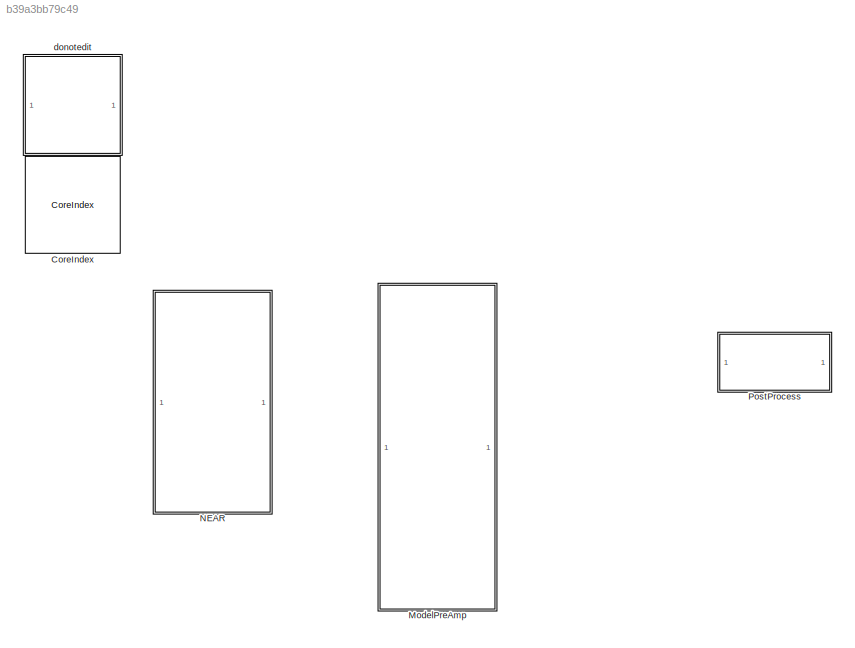
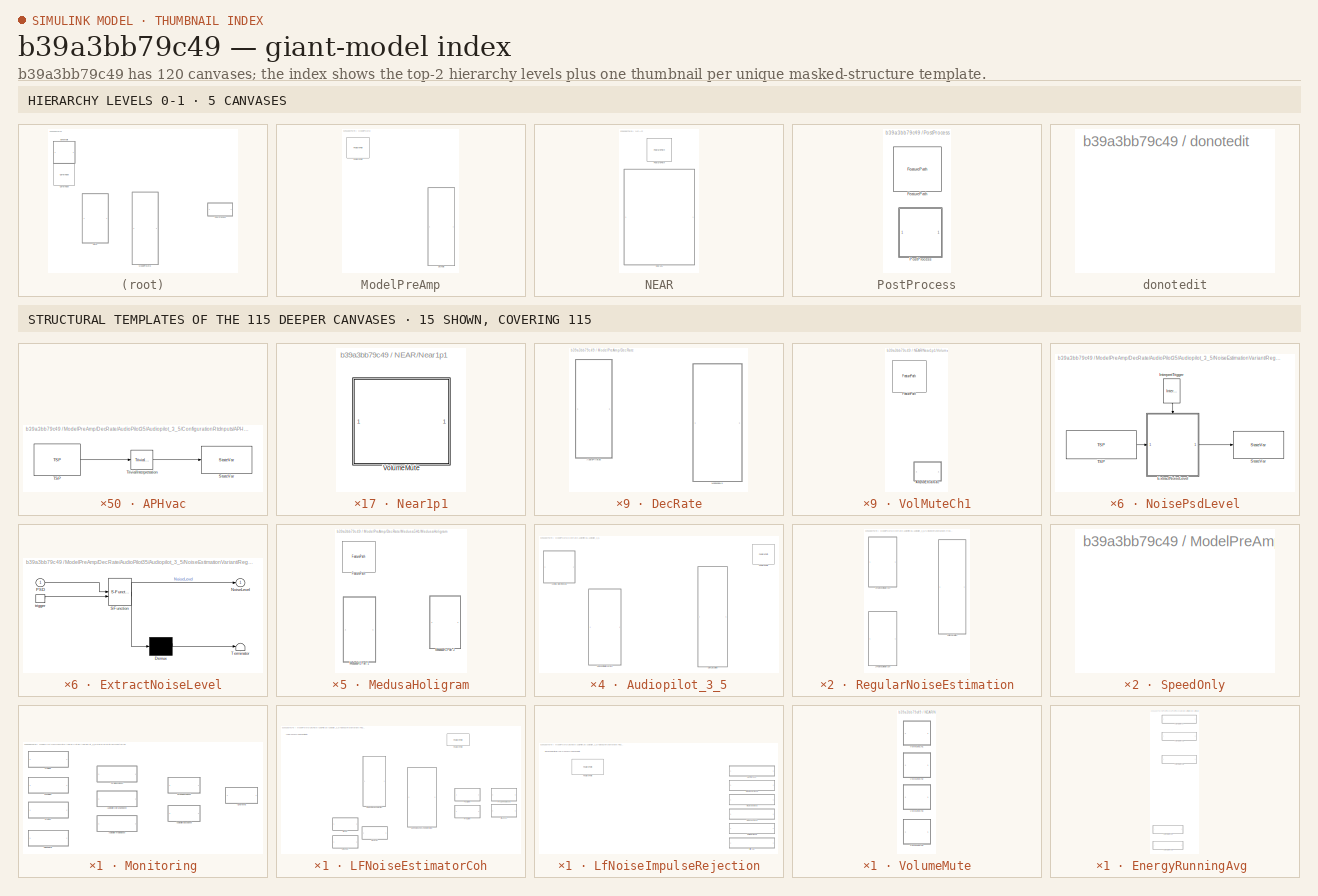
[diagram: thumbnail index - top-2 hierarchy levels (5 canvases) + 15 structural-template representatives of the remaining 115 canvases]
MODEL slx_b39a3bb79c49
KIND model
CONFIG AbsTol = auto
CONFIG EnableMultiTasking = off
CONFIG FixedStep = auto
CONFIG InitFcn = % Initialize model\nModelSettings=BTConfig.GetModelSettings();\n			\nModelSettings.Validate();\n\nModelInit;\n\n\n% load library data\nGainLibrary_data;\n% Load saved values from partition process\nCapturedConstMask.LoadMapFromFile(bdroot)\n% Load saved values from partition process\nTSP_Mask.LoadMapFromFile(bdroot)
CONFIG MaxStep = auto
CONFIG MinStep = auto
CONFIG RelTol = 1e-3
CONFIG SampleTimeConstraint = Unconstrained
CONFIG SolverName = VariableStepAuto
CONFIG StartFcn = % make sure all the simulated RTC requests are found\n%RTC_SIM_OBJ.ValidateREQs();\n
CONFIG StartTime = 0.0
CONFIG StopTime = 10.0
BLOCK [Reference] CoreIndex  REF=FeaturePath/CoreIndex
  SourceBlock = FeaturePath/CoreIndex
  SourceProductName = Bose Talaria
  SourceType = Talaria Core Index
BLOCK [SubSystem] ModelPreAmp
BLOCK [SubSystem] ModelPreAmp/DecRate
BLOCK [SubSystem] ModelPreAmp/DecRate/AudioPilot35
  FunctionWithSeparateData = on
  RTWFcnNameOpts = Use subsystem name
  RTWFileNameOpts = Use subsystem name
  TreatAsAtomicUnit = on
BLOCK [SubSystem] ModelPreAmp/DecRate/AudioPilot35/Audiopilot_3_5
BLOCK [SubSystem] ModelPreAmp/DecRate/AudioPilot35/Audiopilot_3_5/ConfigurationRtcInputs
BLOCK [SubSystem] ModelPreAmp/DecRate/AudioPilot35/Audiopilot_3_5/ConfigurationRtcInputs/APHvac
  MoveFcn = TargetStateVarMask.CB_TriggerInit(gcbh);
BLOCK [Reference] ModelPreAmp/DecRate/AudioPilot35/Audiopilot_3_5/ConfigurationRtcInputs/APHvac/StateVar  REF=StateVar/StateVar
  SourceBlock = StateVar/StateVar
  SourceProductName = Bose Talaria
  SourceType = Talaria State Variable
BLOCK [Reference] ModelPreAmp/DecRate/AudioPilot35/Audiopilot_3_5/ConfigurationRtcInputs/APHvac/TSP  REF=TSP/TSP
  SourceBlock = TSP/TSP
  SourceProductName = Bose Talaria
  SourceType = Talaria Target State Probe
BLOCK [Reference] ModelPreAmp/DecRate/AudioPilot35/Audiopilot_3_5/ConfigurationRtcInputs/APHvac/TrivialInterpretation  REF=StateVar/TrivialInterpretation
  SourceBlock = StateVar/TrivialInterpretation
  SourceProductName = Bose Talaria
  SourceType = Talaria Trivial Interpretation
BLOCK [SubSystem] ModelPreAmp/DecRate/AudioPilot35/Audiopilot_3_5/ConfigurationRtcInputs/VehicleSpeed
  MoveFcn = TargetStateVarMask.CB_TriggerInit(gcbh);
BLOCK [Reference] ModelPreAmp/DecRate/AudioPilot35/Audiopilot_3_5/ConfigurationRtcInputs/VehicleSpeed/StateVar  REF=StateVar/StateVar
  SourceBlock = StateVar/StateVar
  SourceProductName = Bose Talaria
  SourceType = Talaria State Variable
BLOCK [Reference] ModelPreAmp/DecRate/AudioPilot35/Audiopilot_3_5/ConfigurationRtcInputs/VehicleSpeed/TSP  REF=TSP/TSP
  SourceBlock = TSP/TSP
  SourceProductName = Bose Talaria
  SourceType = Talaria Target State Probe
BLOCK [Reference] ModelPreAmp/DecRate/AudioPilot35/Audiopilot_3_5/ConfigurationRtcInputs/VehicleSpeed/TrivialInterpretation  REF=StateVar/TrivialInterpretation
  SourceBlock = StateVar/TrivialInterpretation
  SourceProductName = Bose Talaria
  SourceType = Talaria Trivial Interpretation
BLOCK [Reference] ModelPreAmp/DecRate/AudioPilot35/Audiopilot_3_5/FeaturePath  REF=FeaturePath/FeaturePath
  SourceBlock = FeaturePath/FeaturePath
  SourceProductName = Bose Talaria
  SourceType = Talaria Feature Path
BLOCK [SubSystem] ModelPreAmp/DecRate/AudioPilot35/Audiopilot_3_5/GainCalculation
BLOCK [SubSystem] ModelPreAmp/DecRate/AudioPilot35/Audiopilot_3_5/GainCalculation/Monitoring
BLOCK [SubSystem] ModelPreAmp/DecRate/AudioPilot35/Audiopilot_3_5/GainCalculation/Monitoring/AudiopilotBassBoost
  MoveFcn = TargetStateVarMask.CB_TriggerInit(gcbh);
BLOCK [Reference] ModelPreAmp/DecRate/AudioPilot35/Audiopilot_3_5/GainCalculation/Monitoring/AudiopilotBassBoost/StateVar  REF=StateVar/StateVar
  SourceBlock = StateVar/StateVar
  SourceProductName = Bose Talaria
  SourceType = Talaria State Variable
BLOCK [Reference] ModelPreAmp/DecRate/AudioPilot35/Audiopilot_3_5/GainCalculation/Monitoring/AudiopilotBassBoost/TSP  REF=TSP/TSP
  SourceBlock = TSP/TSP
  SourceProductName = Bose Talaria
  SourceType = Talaria Target State Probe
BLOCK [Reference] ModelPreAmp/DecRate/AudioPilot35/Audiopilot_3_5/GainCalculation/Monitoring/AudiopilotBassBoost/TrivialInterpretation  REF=StateVar/TrivialInterpretation
  SourceBlock = StateVar/TrivialInterpretation
  SourceProductName = Bose Talaria
  SourceType = Talaria Trivial Interpretation
BLOCK [SubSystem] ModelPreAmp/DecRate/AudioPilot35/Audiopilot_3_5/GainCalculation/Monitoring/AudiopilotMidrangeBoost
  MoveFcn = TargetStateVarMask.CB_TriggerInit(gcbh);
BLOCK [Reference] ModelPreAmp/DecRate/AudioPilot35/Audiopilot_3_5/GainCalculation/Monitoring/AudiopilotMidrangeBoost/StateVar  REF=StateVar/StateVar
  SourceBlock = StateVar/StateVar
  SourceProductName = Bose Talaria
  SourceType = Talaria State Variable
BLOCK [Reference] ModelPreAmp/DecRate/AudioPilot35/Audiopilot_3_5/GainCalculation/Monitoring/AudiopilotMidrangeBoost/TSP  REF=TSP/TSP
  SourceBlock = TSP/TSP
  SourceProductName = Bose Talaria
  SourceType = Talaria Target State Probe
BLOCK [Reference] ModelPreAmp/DecRate/AudioPilot35/Audiopilot_3_5/GainCalculation/Monitoring/AudiopilotMidrangeBoost/TrivialInterpretation  REF=StateVar/TrivialInterpretation
  SourceBlock = StateVar/TrivialInterpretation
  SourceProductName = Bose Talaria
  SourceType = Talaria Trivial Interpretation
BLOCK [SubSystem] ModelPreAmp/DecRate/AudioPilot35/Audiopilot_3_5/GainCalculation/Monitoring/AudiopilotTrebleBoost
  MoveFcn = TargetStateVarMask.CB_TriggerInit(gcbh);
BLOCK [Reference] ModelPreAmp/DecRate/AudioPilot35/Audiopilot_3_5/GainCalculation/Monitoring/AudiopilotTrebleBoost/StateVar  REF=StateVar/StateVar
  SourceBlock = StateVar/StateVar
  SourceProductName = Bose Talaria
  SourceType = Talaria State Variable
BLOCK [Reference] ModelPreAmp/DecRate/AudioPilot35/Audiopilot_3_5/GainCalculation/Monitoring/AudiopilotTrebleBoost/TSP  REF=TSP/TSP
  SourceBlock = TSP/TSP
  SourceProductName = Bose Talaria
  SourceType = Talaria Target State Probe
BLOCK [Reference] ModelPreAmp/DecRate/AudioPilot35/Audiopilot_3_5/GainCalculation/Monitoring/AudiopilotTrebleBoost/TrivialInterpretation  REF=StateVar/TrivialInterpretation
  SourceBlock = StateVar/TrivialInterpretation
  SourceProductName = Bose Talaria
  SourceType = Talaria Trivial Interpretation
BLOCK [SubSystem] ModelPreAmp/DecRate/AudioPilot35/Audiopilot_3_5/GainCalculation/Monitoring/DyneqBassBoost
  MoveFcn = TargetStateVarMask.CB_TriggerInit(gcbh);
BLOCK [Reference] ModelPreAmp/DecRate/AudioPilot35/Audiopilot_3_5/GainCalculation/Monitoring/DyneqBassBoost/StateVar  REF=StateVar/StateVar
  SourceBlock = StateVar/StateVar
  SourceProductName = Bose Talaria
  SourceType = Talaria State Variable
BLOCK [Reference] ModelPreAmp/DecRate/AudioPilot35/Audiopilot_3_5/GainCalculation/Monitoring/DyneqBassBoost/TSP  REF=TSP/TSP
  SourceBlock = TSP/TSP
  SourceProductName = Bose Talaria
  SourceType = Talaria Target State Probe
BLOCK [Reference] ModelPreAmp/DecRate/AudioPilot35/Audiopilot_3_5/GainCalculation/Monitoring/DyneqBassBoost/TrivialInterpretation  REF=StateVar/TrivialInterpretation
  SourceBlock = StateVar/TrivialInterpretation
  SourceProductName = Bose Talaria
  SourceType = Talaria Trivial Interpretation
BLOCK [SubSystem] ModelPreAmp/DecRate/AudioPilot35/Audiopilot_3_5/GainCalculation/Monitoring/HfNoise
  MoveFcn = TargetStateVarMask.CB_TriggerInit(gcbh);
BLOCK [Reference] ModelPreAmp/DecRate/AudioPilot35/Audiopilot_3_5/GainCalculation/Monitoring/HfNoise/StateVar  REF=StateVar/StateVar
  SourceBlock = StateVar/StateVar
  SourceProductName = Bose Talaria
  SourceType = Talaria State Variable
BLOCK [Reference] ModelPreAmp/DecRate/AudioPilot35/Audiopilot_3_5/GainCalculation/Monitoring/HfNoise/TSP  REF=TSP/TSP
  SourceBlock = TSP/TSP
  SourceProductName = Bose Talaria
  SourceType = Talaria Target State Probe
BLOCK [Reference] ModelPreAmp/DecRate/AudioPilot35/Audiopilot_3_5/GainCalculation/Monitoring/HfNoise/TrivialInterpretation  REF=StateVar/TrivialInterpretation
  SourceBlock = StateVar/TrivialInterpretation
  SourceProductName = Bose Talaria
  SourceType = Talaria Trivial Interpretation
BLOCK [SubSystem] ModelPreAmp/DecRate/AudioPilot35/Audiopilot_3_5/GainCalculation/Monitoring/IgnoreMic
  MoveFcn = TargetStateVarMask.CB_TriggerInit(gcbh);
BLOCK [Reference] ModelPreAmp/DecRate/AudioPilot35/Audiopilot_3_5/GainCalculation/Monitoring/IgnoreMic/StateVar  REF=StateVar/StateVar
  SourceBlock = StateVar/StateVar
  SourceProductName = Bose Talaria
  SourceType = Talaria State Variable
BLOCK [Reference] ModelPreAmp/DecRate/AudioPilot35/Audiopilot_3_5/GainCalculation/Monitoring/IgnoreMic/TSP  REF=TSP/TSP
  SourceBlock = TSP/TSP
  SourceProductName = Bose Talaria
  SourceType = Talaria Target State Probe
BLOCK [Reference] ModelPreAmp/DecRate/AudioPilot35/Audiopilot_3_5/GainCalculation/Monitoring/IgnoreMic/TrivialInterpretation  REF=StateVar/TrivialInterpretation
  SourceBlock = StateVar/TrivialInterpretation
  SourceProductName = Bose Talaria
  SourceType = Talaria Trivial Interpretation
BLOCK [SubSystem] ModelPreAmp/DecRate/AudioPilot35/Audiopilot_3_5/GainCalculation/Monitoring/LfNoise
  MoveFcn = TargetStateVarMask.CB_TriggerInit(gcbh);
BLOCK [Reference] ModelPreAmp/DecRate/AudioPilot35/Audiopilot_3_5/GainCalculation/Monitoring/LfNoise/StateVar  REF=StateVar/StateVar
  SourceBlock = StateVar/StateVar
  SourceProductName = Bose Talaria
  SourceType = Talaria State Variable
BLOCK [Reference] ModelPreAmp/DecRate/AudioPilot35/Audiopilot_3_5/GainCalculation/Monitoring/LfNoise/TSP  REF=TSP/TSP
  SourceBlock = TSP/TSP
  SourceProductName = Bose Talaria
  SourceType = Talaria Target State Probe
BLOCK [Reference] ModelPreAmp/DecRate/AudioPilot35/Audiopilot_3_5/GainCalculation/Monitoring/LfNoise/TrivialInterpretation  REF=StateVar/TrivialInterpretation
  SourceBlock = StateVar/TrivialInterpretation
  SourceProductName = Bose Talaria
  SourceType = Talaria Trivial Interpretation
BLOCK [SubSystem] ModelPreAmp/DecRate/AudioPilot35/Audiopilot_3_5/GainCalculation/Monitoring/NoiseRatio
  MoveFcn = TargetStateVarMask.CB_TriggerInit(gcbh);
BLOCK [Reference] ModelPreAmp/DecRate/AudioPilot35/Audiopilot_3_5/GainCalculation/Monitoring/NoiseRatio/StateVar  REF=StateVar/StateVar
  SourceBlock = StateVar/StateVar
  SourceProductName = Bose Talaria
  SourceType = Talaria State Variable
BLOCK [Reference] ModelPreAmp/DecRate/AudioPilot35/Audiopilot_3_5/GainCalculation/Monitoring/NoiseRatio/TSP  REF=TSP/TSP
  SourceBlock = TSP/TSP
  SourceProductName = Bose Talaria
  SourceType = Talaria Target State Probe
BLOCK [Reference] ModelPreAmp/DecRate/AudioPilot35/Audiopilot_3_5/GainCalculation/Monitoring/NoiseRatio/TrivialInterpretation  REF=StateVar/TrivialInterpretation
  SourceBlock = StateVar/TrivialInterpretation
  SourceProductName = Bose Talaria
  SourceType = Talaria Trivial Interpretation
BLOCK [SubSystem] ModelPreAmp/DecRate/AudioPilot35/Audiopilot_3_5/GainCalculation/Monitoring/TotalBassBoost
  MoveFcn = TargetStateVarMask.CB_TriggerInit(gcbh);
BLOCK [Reference] ModelPreAmp/DecRate/AudioPilot35/Audiopilot_3_5/GainCalculation/Monitoring/TotalBassBoost/StateVar  REF=StateVar/StateVar
  SourceBlock = StateVar/StateVar
  SourceProductName = Bose Talaria
  SourceType = Talaria State Variable
BLOCK [Reference] ModelPreAmp/DecRate/AudioPilot35/Audiopilot_3_5/GainCalculation/Monitoring/TotalBassBoost/TSP  REF=TSP/TSP
  SourceBlock = TSP/TSP
  SourceProductName = Bose Talaria
  SourceType = Talaria Target State Probe
BLOCK [Reference] ModelPreAmp/DecRate/AudioPilot35/Audiopilot_3_5/GainCalculation/Monitoring/TotalBassBoost/TrivialInterpretation  REF=StateVar/TrivialInterpretation
  SourceBlock = StateVar/TrivialInterpretation
  SourceProductName = Bose Talaria
  SourceType = Talaria Trivial Interpretation
BLOCK [SubSystem] ModelPreAmp/DecRate/AudioPilot35/Audiopilot_3_5/GainCalculation/Monitoring/WbNoise
  MoveFcn = TargetStateVarMask.CB_TriggerInit(gcbh);
BLOCK [Reference] ModelPreAmp/DecRate/AudioPilot35/Audiopilot_3_5/GainCalculation/Monitoring/WbNoise/StateVar  REF=StateVar/StateVar
  SourceBlock = StateVar/StateVar
  SourceProductName = Bose Talaria
  SourceType = Talaria State Variable
BLOCK [Reference] ModelPreAmp/DecRate/AudioPilot35/Audiopilot_3_5/GainCalculation/Monitoring/WbNoise/TSP  REF=TSP/TSP
  SourceBlock = TSP/TSP
  SourceProductName = Bose Talaria
  SourceType = Talaria Target State Probe
BLOCK [Reference] ModelPreAmp/DecRate/AudioPilot35/Audiopilot_3_5/GainCalculation/Monitoring/WbNoise/TrivialInterpretation  REF=StateVar/TrivialInterpretation
  SourceBlock = StateVar/TrivialInterpretation
  SourceProductName = Bose Talaria
  SourceType = Talaria Trivial Interpretation
BLOCK [SubSystem] ModelPreAmp/DecRate/AudioPilot35/Audiopilot_3_5/GainCalculation/RampedEnable
BLOCK [SubSystem] ModelPreAmp/DecRate/AudioPilot35/Audiopilot_3_5/GainCalculation/RampedEnable/audiopilot boost gain
  MoveFcn = TargetStateVarMask.CB_TriggerInit(gcbh);
BLOCK [Reference] ModelPreAmp/DecRate/AudioPilot35/Audiopilot_3_5/GainCalculation/RampedEnable/audiopilot boost gain/StateVar  REF=StateVar/StateVar
  SourceBlock = StateVar/StateVar
  SourceProductName = Bose Talaria
  SourceType = Talaria State Variable
BLOCK [Reference] ModelPreAmp/DecRate/AudioPilot35/Audiopilot_3_5/GainCalculation/RampedEnable/audiopilot boost gain/TSP  REF=TSP/TSP
  SourceBlock = TSP/TSP
  SourceProductName = Bose Talaria
  SourceType = Talaria Target State Probe
BLOCK [Reference] ModelPreAmp/DecRate/AudioPilot35/Audiopilot_3_5/GainCalculation/RampedEnable/audiopilot boost gain/TrivialInterpretation  REF=StateVar/TrivialInterpretation
  SourceBlock = StateVar/TrivialInterpretation
  SourceProductName = Bose Talaria
  SourceType = Talaria Trivial Interpretation
BLOCK [SubSystem] ModelPreAmp/DecRate/AudioPilot35/Audiopilot_3_5/GainCalculation/RampedEnable/dyneq boost gain
  MoveFcn = TargetStateVarMask.CB_TriggerInit(gcbh);
BLOCK [Reference] ModelPreAmp/DecRate/AudioPilot35/Audiopilot_3_5/GainCalculation/RampedEnable/dyneq boost gain/StateVar  REF=StateVar/StateVar
  SourceBlock = StateVar/StateVar
  SourceProductName = Bose Talaria
  SourceType = Talaria State Variable
BLOCK [Reference] ModelPreAmp/DecRate/AudioPilot35/Audiopilot_3_5/GainCalculation/RampedEnable/dyneq boost gain/TSP  REF=TSP/TSP
  SourceBlock = TSP/TSP
  SourceProductName = Bose Talaria
  SourceType = Talaria Target State Probe
BLOCK [Reference] ModelPreAmp/DecRate/AudioPilot35/Audiopilot_3_5/GainCalculation/RampedEnable/dyneq boost gain/TrivialInterpretation  REF=StateVar/TrivialInterpretation
  SourceBlock = StateVar/TrivialInterpretation
  SourceProductName = Bose Talaria
  SourceType = Talaria Trivial Interpretation
BLOCK [SubSystem] ModelPreAmp/DecRate/AudioPilot35/Audiopilot_3_5/NoiseEstimationVariant
  LabelModeActiveChoice = Regular
  PropagateVariantConditions = on
  Variant = on
  VariantControlMode = label
BLOCK [SubSystem] ModelPreAmp/DecRate/AudioPilot35/Audiopilot_3_5/NoiseEstimationVariant/RegularNoiseEstimation
  VariantControl = Regular
BLOCK [SubSystem] ModelPreAmp/DecRate/AudioPilot35/Audiopilot_3_5/NoiseEstimationVariant/RegularNoiseEstimation/HFNoiseEstimatorCoh
BLOCK [Reference] ModelPreAmp/DecRate/AudioPilot35/Audiopilot_3_5/NoiseEstimationVariant/RegularNoiseEstimation/HFNoiseEstimatorCoh/FeaturePath  REF=FeaturePath/FeaturePath
  SourceBlock = FeaturePath/FeaturePath
  SourceProductName = Bose Talaria
  SourceType = Talaria Feature Path
BLOCK [SubSystem] ModelPreAmp/DecRate/AudioPilot35/Audiopilot_3_5/NoiseEstimationVariant/RegularNoiseEstimation/HFNoiseEstimatorCoh/HfNoiseMusicSeparation 
BLOCK [SubSystem] ModelPreAmp/DecRate/AudioPilot35/Audiopilot_3_5/NoiseEstimationVariant/RegularNoiseEstimation/HFNoiseEstimatorCoh/HfNoiseMusicSeparation /MicPsdLevel
BLOCK [SubSystem] ModelPreAmp/DecRate/AudioPilot35/Audiopilot_3_5/NoiseEstimationVariant/RegularNoiseEstimation/HFNoiseEstimatorCoh/HfNoiseMusicSeparation /MicPsdLevel/TargetStateVar
  MoveFcn = TargetStateVarMask.CB_TriggerInit(gcbh);
BLOCK [Reference] ModelPreAmp/DecRate/AudioPilot35/Audiopilot_3_5/NoiseEstimationVariant/RegularNoiseEstimation/HFNoiseEstimatorCoh/HfNoiseMusicSeparation /MicPsdLevel/TargetStateVar/StateVar  REF=StateVar/StateVar
  SourceBlock = StateVar/StateVar
  SourceProductName = Bose Talaria
  SourceType = Talaria State Variable
BLOCK [Reference] ModelPreAmp/DecRate/AudioPilot35/Audiopilot_3_5/NoiseEstimationVariant/RegularNoiseEstimation/HFNoiseEstimatorCoh/HfNoiseMusicSeparation /MicPsdLevel/TargetStateVar/TSP  REF=TSP/TSP
  SourceBlock = TSP/TSP
  SourceProductName = Bose Talaria
  SourceType = Talaria Target State Probe
BLOCK [Reference] ModelPreAmp/DecRate/AudioPilot35/Audiopilot_3_5/NoiseEstimationVariant/RegularNoiseEstimation/HFNoiseEstimatorCoh/HfNoiseMusicSeparation /MicPsdLevel/TargetStateVar/TrivialInterpretation  REF=StateVar/TrivialInterpretation
  SourceBlock = StateVar/TrivialInterpretation
  SourceProductName = Bose Talaria
  SourceType = Talaria Trivial Interpretation
BLOCK [SubSystem] ModelPreAmp/DecRate/AudioPilot35/Audiopilot_3_5/NoiseEstimationVariant/RegularNoiseEstimation/HFNoiseEstimatorCoh/HfNoiseMusicSeparation /NoisePsdLevel
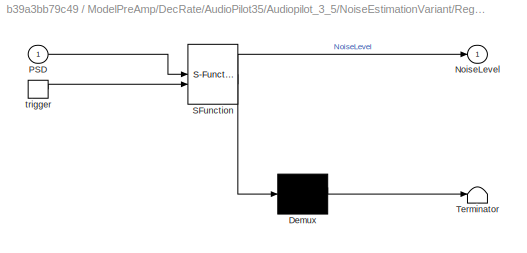
BLOCK [SubSystem] ModelPreAmp/DecRate/AudioPilot35/Audiopilot_3_5/NoiseEstimationVariant/RegularNoiseEstimation/HFNoiseEstimatorCoh/HfNoiseMusicSeparation /NoisePsdLevel/ExtractNoiseLevel
  ErrorFcn = Stateflow.Translate.translate
  PermitHierarchicalResolution = ExplicitOnly
  SFBlockType = MATLAB Function
  TreatAsAtomicUnit = on
BLOCK [Demux] ModelPreAmp/DecRate/AudioPilot35/Audiopilot_3_5/NoiseEstimationVariant/RegularNoiseEstimation/HFNoiseEstimatorCoh/HfNoiseMusicSeparation /NoisePsdLevel/ExtractNoiseLevel/ Demux 
  Outputs = 1
BLOCK [S-Function] ModelPreAmp/DecRate/AudioPilot35/Audiopilot_3_5/NoiseEstimationVariant/RegularNoiseEstimation/HFNoiseEstimatorCoh/HfNoiseMusicSeparation /NoisePsdLevel/ExtractNoiseLevel/ SFunction 
  EnableBusSupport = off
  FunctionName = sf_sfun
  PortCounts = [2 2]
  SFcnIsStateOwnerBlock = off
  SFunctionDeploymentMode = off
  Tag = Stateflow S-Function 12
BLOCK [Terminator] ModelPreAmp/DecRate/AudioPilot35/Audiopilot_3_5/NoiseEstimationVariant/RegularNoiseEstimation/HFNoiseEstimatorCoh/HfNoiseMusicSeparation /NoisePsdLevel/ExtractNoiseLevel/ Terminator 
BLOCK [Outport] ModelPreAmp/DecRate/AudioPilot35/Audiopilot_3_5/NoiseEstimationVariant/RegularNoiseEstimation/HFNoiseEstimatorCoh/HfNoiseMusicSeparation /NoisePsdLevel/ExtractNoiseLevel/NoiseLevel
BLOCK [Inport] ModelPreAmp/DecRate/AudioPilot35/Audiopilot_3_5/NoiseEstimationVariant/RegularNoiseEstimation/HFNoiseEstimatorCoh/HfNoiseMusicSeparation /NoisePsdLevel/ExtractNoiseLevel/PSD
BLOCK [TriggerPort] ModelPreAmp/DecRate/AudioPilot35/Audiopilot_3_5/NoiseEstimationVariant/RegularNoiseEstimation/HFNoiseEstimatorCoh/HfNoiseMusicSeparation /NoisePsdLevel/ExtractNoiseLevel/trigger
  ShowOutputPort = on
  StatesWhenEnabling = held
  TriggerType = function-call
  VariantControl = Variant
BLOCK [Reference] ModelPreAmp/DecRate/AudioPilot35/Audiopilot_3_5/NoiseEstimationVariant/RegularNoiseEstimation/HFNoiseEstimatorCoh/HfNoiseMusicSeparation /NoisePsdLevel/InterpretTrigger  REF=StateVar/InterpretTrigger
  NameLocation = right
  SourceBlock = StateVar/InterpretTrigger
  SourceProductName = Bose Talaria
  SourceType = Talaria Interpret Trigger
BLOCK [Reference] ModelPreAmp/DecRate/AudioPilot35/Audiopilot_3_5/NoiseEstimationVariant/RegularNoiseEstimation/HFNoiseEstimatorCoh/HfNoiseMusicSeparation /NoisePsdLevel/StateVar  REF=StateVar/StateVar
  SourceBlock = StateVar/StateVar
  SourceProductName = Bose Talaria
  SourceType = Talaria State Variable
BLOCK [Reference] ModelPreAmp/DecRate/AudioPilot35/Audiopilot_3_5/NoiseEstimationVariant/RegularNoiseEstimation/HFNoiseEstimatorCoh/HfNoiseMusicSeparation /NoisePsdLevel/TSP  REF=TSP/TSP
  SourceBlock = TSP/TSP
  SourceProductName = Bose Talaria
  SourceType = Talaria Target State Probe
BLOCK [SubSystem] ModelPreAmp/DecRate/AudioPilot35/Audiopilot_3_5/NoiseEstimationVariant/RegularNoiseEstimation/HFNoiseEstimatorCoh/PostProcessing
BLOCK [SubSystem] ModelPreAmp/DecRate/AudioPilot35/Audiopilot_3_5/NoiseEstimationVariant/RegularNoiseEstimation/HFNoiseEstimatorCoh/PostProcessing/HfImpulseRejection
BLOCK [Reference] ModelPreAmp/DecRate/AudioPilot35/Audiopilot_3_5/NoiseEstimationVariant/RegularNoiseEstimation/HFNoiseEstimatorCoh/PostProcessing/HfImpulseRejection/FeaturePath  REF=FeaturePath/FeaturePath
  SourceBlock = FeaturePath/FeaturePath
  SourceProductName = Bose Talaria
  SourceType = Talaria Feature Path
BLOCK [SubSystem] ModelPreAmp/DecRate/AudioPilot35/Audiopilot_3_5/NoiseEstimationVariant/RegularNoiseEstimation/HFNoiseEstimatorCoh/PostProcessing/HfImpulseRejection/MinSearch
BLOCK [SubSystem] ModelPreAmp/DecRate/AudioPilot35/Audiopilot_3_5/NoiseEstimationVariant/RegularNoiseEstimation/HFNoiseEstimatorCoh/PostProcessing/HfImpulseRejection/MinSearch/Flatness
  MoveFcn = TargetStateVarMask.CB_TriggerInit(gcbh);
BLOCK [Reference] ModelPreAmp/DecRate/AudioPilot35/Audiopilot_3_5/NoiseEstimationVariant/RegularNoiseEstimation/HFNoiseEstimatorCoh/PostProcessing/HfImpulseRejection/MinSearch/Flatness/StateVar  REF=StateVar/StateVar
  SourceBlock = StateVar/StateVar
  SourceProductName = Bose Talaria
  SourceType = Talaria State Variable
BLOCK [Reference] ModelPreAmp/DecRate/AudioPilot35/Audiopilot_3_5/NoiseEstimationVariant/RegularNoiseEstimation/HFNoiseEstimatorCoh/PostProcessing/HfImpulseRejection/MinSearch/Flatness/TSP  REF=TSP/TSP
  SourceBlock = TSP/TSP
  SourceProductName = Bose Talaria
  SourceType = Talaria Target State Probe
BLOCK [Reference] ModelPreAmp/DecRate/AudioPilot35/Audiopilot_3_5/NoiseEstimationVariant/RegularNoiseEstimation/HFNoiseEstimatorCoh/PostProcessing/HfImpulseRejection/MinSearch/Flatness/TrivialInterpretation  REF=StateVar/TrivialInterpretation
  SourceBlock = StateVar/TrivialInterpretation
  SourceProductName = Bose Talaria
  SourceType = Talaria Trivial Interpretation
BLOCK [SubSystem] ModelPreAmp/DecRate/AudioPilot35/Audiopilot_3_5/NoiseEstimationVariant/RegularNoiseEstimation/HFNoiseEstimatorCoh/PostProcessing/HfImpulseRejection/Pmin
  MoveFcn = TargetStateVarMask.CB_TriggerInit(gcbh);
BLOCK [Reference] ModelPreAmp/DecRate/AudioPilot35/Audiopilot_3_5/NoiseEstimationVariant/RegularNoiseEstimation/HFNoiseEstimatorCoh/PostProcessing/HfImpulseRejection/Pmin/StateVar  REF=StateVar/StateVar
  SourceBlock = StateVar/StateVar
  SourceProductName = Bose Talaria
  SourceType = Talaria State Variable
BLOCK [Reference] ModelPreAmp/DecRate/AudioPilot35/Audiopilot_3_5/NoiseEstimationVariant/RegularNoiseEstimation/HFNoiseEstimatorCoh/PostProcessing/HfImpulseRejection/Pmin/TSP  REF=TSP/TSP
  SourceBlock = TSP/TSP
  SourceProductName = Bose Talaria
  SourceType = Talaria Target State Probe
BLOCK [Reference] ModelPreAmp/DecRate/AudioPilot35/Audiopilot_3_5/NoiseEstimationVariant/RegularNoiseEstimation/HFNoiseEstimatorCoh/PostProcessing/HfImpulseRejection/Pmin/TrivialInterpretation  REF=StateVar/TrivialInterpretation
  SourceBlock = StateVar/TrivialInterpretation
  SourceProductName = Bose Talaria
  SourceType = Talaria Trivial Interpretation
BLOCK [SubSystem] ModelPreAmp/DecRate/AudioPilot35/Audiopilot_3_5/NoiseEstimationVariant/RegularNoiseEstimation/HFNoiseEstimatorCoh/PostProcessing/PostSlew
  MoveFcn = TargetStateVarMask.CB_TriggerInit(gcbh);
BLOCK [Reference] ModelPreAmp/DecRate/AudioPilot35/Audiopilot_3_5/NoiseEstimationVariant/RegularNoiseEstimation/HFNoiseEstimatorCoh/PostProcessing/PostSlew/StateVar  REF=StateVar/StateVar
  SourceBlock = StateVar/StateVar
  SourceProductName = Bose Talaria
  SourceType = Talaria State Variable
BLOCK [Reference] ModelPreAmp/DecRate/AudioPilot35/Audiopilot_3_5/NoiseEstimationVariant/RegularNoiseEstimation/HFNoiseEstimatorCoh/PostProcessing/PostSlew/TSP  REF=TSP/TSP
  SourceBlock = TSP/TSP
  SourceProductName = Bose Talaria
  SourceType = Talaria Target State Probe
BLOCK [Reference] ModelPreAmp/DecRate/AudioPilot35/Audiopilot_3_5/NoiseEstimationVariant/RegularNoiseEstimation/HFNoiseEstimatorCoh/PostProcessing/PostSlew/TrivialInterpretation  REF=StateVar/TrivialInterpretation
  SourceBlock = StateVar/TrivialInterpretation
  SourceProductName = Bose Talaria
  SourceType = Talaria Trivial Interpretation
BLOCK [SubSystem] ModelPreAmp/DecRate/AudioPilot35/Audiopilot_3_5/NoiseEstimationVariant/RegularNoiseEstimation/HFNoiseEstimatorCoh/PostProcessing/PreSlew
  MoveFcn = TargetStateVarMask.CB_TriggerInit(gcbh);
BLOCK [Reference] ModelPreAmp/DecRate/AudioPilot35/Audiopilot_3_5/NoiseEstimationVariant/RegularNoiseEstimation/HFNoiseEstimatorCoh/PostProcessing/PreSlew/StateVar  REF=StateVar/StateVar
  SourceBlock = StateVar/StateVar
  SourceProductName = Bose Talaria
  SourceType = Talaria State Variable
BLOCK [Reference] ModelPreAmp/DecRate/AudioPilot35/Audiopilot_3_5/NoiseEstimationVariant/RegularNoiseEstimation/HFNoiseEstimatorCoh/PostProcessing/PreSlew/TSP  REF=TSP/TSP
  SourceBlock = TSP/TSP
  SourceProductName = Bose Talaria
  SourceType = Talaria Target State Probe
BLOCK [Reference] ModelPreAmp/DecRate/AudioPilot35/Audiopilot_3_5/NoiseEstimationVariant/RegularNoiseEstimation/HFNoiseEstimatorCoh/PostProcessing/PreSlew/TrivialInterpretation  REF=StateVar/TrivialInterpretation
  SourceBlock = StateVar/TrivialInterpretation
  SourceProductName = Bose Talaria
  SourceType = Talaria Trivial Interpretation
BLOCK [SubSystem] ModelPreAmp/DecRate/AudioPilot35/Audiopilot_3_5/NoiseEstimationVariant/RegularNoiseEstimation/LFNoiseEstimatorCoh
BLOCK [Reference] ModelPreAmp/DecRate/AudioPilot35/Audiopilot_3_5/NoiseEstimationVariant/RegularNoiseEstimation/LFNoiseEstimatorCoh/FeaturePath  REF=FeaturePath/FeaturePath
  SourceBlock = FeaturePath/FeaturePath
  SourceProductName = Bose Talaria
  SourceType = Talaria Feature Path
BLOCK [SubSystem] ModelPreAmp/DecRate/AudioPilot35/Audiopilot_3_5/NoiseEstimationVariant/RegularNoiseEstimation/LFNoiseEstimatorCoh/LfNoiseImpulseRejection
BLOCK [Reference] ModelPreAmp/DecRate/AudioPilot35/Audiopilot_3_5/NoiseEstimationVariant/RegularNoiseEstimation/LFNoiseEstimatorCoh/LfNoiseImpulseRejection/FeaturePath  REF=FeaturePath/FeaturePath
  SourceBlock = FeaturePath/FeaturePath
  SourceProductName = Bose Talaria
  SourceType = Talaria Feature Path
BLOCK [SubSystem] ModelPreAmp/DecRate/AudioPilot35/Audiopilot_3_5/NoiseEstimationVariant/RegularNoiseEstimation/LFNoiseEstimatorCoh/LfNoiseImpulseRejection/FilterOut
  MoveFcn = TargetStateVarMask.CB_TriggerInit(gcbh);
BLOCK [Reference] ModelPreAmp/DecRate/AudioPilot35/Audiopilot_3_5/NoiseEstimationVariant/RegularNoiseEstimation/LFNoiseEstimatorCoh/LfNoiseImpulseRejection/FilterOut/StateVar  REF=StateVar/StateVar
  SourceBlock = StateVar/StateVar
  SourceProductName = Bose Talaria
  SourceType = Talaria State Variable
BLOCK [Reference] ModelPreAmp/DecRate/AudioPilot35/Audiopilot_3_5/NoiseEstimationVariant/RegularNoiseEstimation/LFNoiseEstimatorCoh/LfNoiseImpulseRejection/FilterOut/TSP  REF=TSP/TSP
  SourceBlock = TSP/TSP
  SourceProductName = Bose Talaria
  SourceType = Talaria Target State Probe
BLOCK [Reference] ModelPreAmp/DecRate/AudioPilot35/Audiopilot_3_5/NoiseEstimationVariant/RegularNoiseEstimation/LFNoiseEstimatorCoh/LfNoiseImpulseRejection/FilterOut/TrivialInterpretation  REF=StateVar/TrivialInterpretation
  SourceBlock = StateVar/TrivialInterpretation
  SourceProductName = Bose Talaria
  SourceType = Talaria Trivial Interpretation
BLOCK [SubSystem] ModelPreAmp/DecRate/AudioPilot35/Audiopilot_3_5/NoiseEstimationVariant/RegularNoiseEstimation/LFNoiseEstimatorCoh/LfNoiseImpulseRejection/GammaTauS
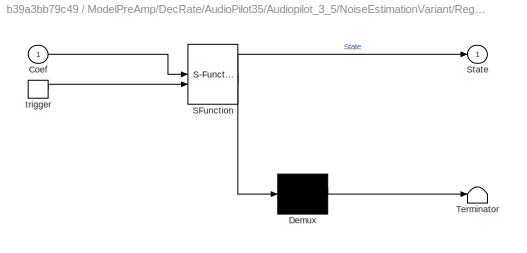
BLOCK [SubSystem] ModelPreAmp/DecRate/AudioPilot35/Audiopilot_3_5/NoiseEstimationVariant/RegularNoiseEstimation/LFNoiseEstimatorCoh/LfNoiseImpulseRejection/GammaTauS/GammaConversion
  ErrorFcn = Stateflow.Translate.translate
  PermitHierarchicalResolution = ExplicitOnly
  SFBlockType = MATLAB Function
  TreatAsAtomicUnit = on
BLOCK [Demux] ModelPreAmp/DecRate/AudioPilot35/Audiopilot_3_5/NoiseEstimationVariant/RegularNoiseEstimation/LFNoiseEstimatorCoh/LfNoiseImpulseRejection/GammaTauS/GammaConversion/ Demux 
  Outputs = 1
BLOCK [S-Function] ModelPreAmp/DecRate/AudioPilot35/Audiopilot_3_5/NoiseEstimationVariant/RegularNoiseEstimation/LFNoiseEstimatorCoh/LfNoiseImpulseRejection/GammaTauS/GammaConversion/ SFunction 
  EnableBusSupport = off
  FunctionName = sf_sfun
  Parameters = DecRate3
  PortCounts = [2 2]
  SFcnIsStateOwnerBlock = off
  SFunctionDeploymentMode = off
  Tag = Stateflow S-Function 14
BLOCK [Terminator] ModelPreAmp/DecRate/AudioPilot35/Audiopilot_3_5/NoiseEstimationVariant/RegularNoiseEstimation/LFNoiseEstimatorCoh/LfNoiseImpulseRejection/GammaTauS/GammaConversion/ Terminator 
BLOCK [Inport] ModelPreAmp/DecRate/AudioPilot35/Audiopilot_3_5/NoiseEstimationVariant/RegularNoiseEstimation/LFNoiseEstimatorCoh/LfNoiseImpulseRejection/GammaTauS/GammaConversion/Coef
BLOCK [Outport] ModelPreAmp/DecRate/AudioPilot35/Audiopilot_3_5/NoiseEstimationVariant/RegularNoiseEstimation/LFNoiseEstimatorCoh/LfNoiseImpulseRejection/GammaTauS/GammaConversion/State
  VectorParamsAs1DForOutWhenUnconnected = off
BLOCK [TriggerPort] ModelPreAmp/DecRate/AudioPilot35/Audiopilot_3_5/NoiseEstimationVariant/RegularNoiseEstimation/LFNoiseEstimatorCoh/LfNoiseImpulseRejection/GammaTauS/GammaConversion/trigger
  ShowOutputPort = on
  StatesWhenEnabling = held
  TriggerType = function-call
  VariantControl = Variant
BLOCK [Reference] ModelPreAmp/DecRate/AudioPilot35/Audiopilot_3_5/NoiseEstimationVariant/RegularNoiseEstimation/LFNoiseEstimatorCoh/LfNoiseImpulseRejection/GammaTauS/InterpretTrigger  REF=StateVar/InterpretTrigger
  NameLocation = left
  SourceBlock = StateVar/InterpretTrigger
  SourceProductName = Bose Talaria
  SourceType = Talaria Interpret Trigger
BLOCK [Reference] ModelPreAmp/DecRate/AudioPilot35/Audiopilot_3_5/NoiseEstimationVariant/RegularNoiseEstimation/LFNoiseEstimatorCoh/LfNoiseImpulseRejection/GammaTauS/StateVar  REF=StateVar/StateVar
  SourceBlock = StateVar/StateVar
  SourceProductName = Bose Talaria
  SourceType = Talaria State Variable
BLOCK [Reference] ModelPreAmp/DecRate/AudioPilot35/Audiopilot_3_5/NoiseEstimationVariant/RegularNoiseEstimation/LFNoiseEstimatorCoh/LfNoiseImpulseRejection/GammaTauS/TSP  REF=TSP/TSP
  SourceBlock = TSP/TSP
  SourceProductName = Bose Talaria
  SourceType = Talaria Target State Probe
BLOCK [SubSystem] ModelPreAmp/DecRate/AudioPilot35/Audiopilot_3_5/NoiseEstimationVariant/RegularNoiseEstimation/LFNoiseEstimatorCoh/LfNoiseImpulseRejection/ImpulseVariance
BLOCK [Reference] ModelPreAmp/DecRate/AudioPilot35/Audiopilot_3_5/NoiseEstimationVariant/RegularNoiseEstimation/LFNoiseEstimatorCoh/LfNoiseImpulseRejection/ImpulseVariance/InterpretTrigger  REF=StateVar/InterpretTrigger
  NameLocation = left
  SourceBlock = StateVar/InterpretTrigger
  SourceProductName = Bose Talaria
  SourceType = Talaria Interpret Trigger
BLOCK [Reference] ModelPreAmp/DecRate/AudioPilot35/Audiopilot_3_5/NoiseEstimationVariant/RegularNoiseEstimation/LFNoiseEstimatorCoh/LfNoiseImpulseRejection/ImpulseVariance/StateVar  REF=StateVar/StateVar
  SourceBlock = StateVar/StateVar
  SourceProductName = Bose Talaria
  SourceType = Talaria State Variable
BLOCK [Reference] ModelPreAmp/DecRate/AudioPilot35/Audiopilot_3_5/NoiseEstimationVariant/RegularNoiseEstimation/LFNoiseEstimatorCoh/LfNoiseImpulseRejection/ImpulseVariance/TSP  REF=TSP/TSP
  SourceBlock = TSP/TSP
  SourceProductName = Bose Talaria
  SourceType = Talaria Target State Probe
BLOCK [SubSystem] ModelPreAmp/DecRate/AudioPilot35/Audiopilot_3_5/NoiseEstimationVariant/RegularNoiseEstimation/LFNoiseEstimatorCoh/LfNoiseImpulseRejection/ImpulseVariance/db20
  ErrorFcn = Stateflow.Translate.translate
  PermitHierarchicalResolution = ExplicitOnly
  SFBlockType = MATLAB Function
  TreatAsAtomicUnit = on
BLOCK [Demux] ModelPreAmp/DecRate/AudioPilot35/Audiopilot_3_5/NoiseEstimationVariant/RegularNoiseEstimation/LFNoiseEstimatorCoh/LfNoiseImpulseRejection/ImpulseVariance/db20/ Demux 
  Outputs = 1
BLOCK [S-Function] ModelPreAmp/DecRate/AudioPilot35/Audiopilot_3_5/NoiseEstimationVariant/RegularNoiseEstimation/LFNoiseEstimatorCoh/LfNoiseImpulseRejection/ImpulseVariance/db20/ SFunction 
  EnableBusSupport = off
  FunctionName = sf_sfun
  PortCounts = [2 2]
  SFcnIsStateOwnerBlock = off
  SFunctionDeploymentMode = off
  Tag = Stateflow S-Function 11
BLOCK [Terminator] ModelPreAmp/DecRate/AudioPilot35/Audiopilot_3_5/NoiseEstimationVariant/RegularNoiseEstimation/LFNoiseEstimatorCoh/LfNoiseImpulseRejection/ImpulseVariance/db20/ Terminator 
BLOCK [Outport] ModelPreAmp/DecRate/AudioPilot35/Audiopilot_3_5/NoiseEstimationVariant/RegularNoiseEstimation/LFNoiseEstimatorCoh/LfNoiseImpulseRejection/ImpulseVariance/db20/State
  VectorParamsAs1DForOutWhenUnconnected = off
BLOCK [Inport] ModelPreAmp/DecRate/AudioPilot35/Audiopilot_3_5/NoiseEstimationVariant/RegularNoiseEstimation/LFNoiseEstimatorCoh/LfNoiseImpulseRejection/ImpulseVariance/db20/TSP1
BLOCK [TriggerPort] ModelPreAmp/DecRate/AudioPilot35/Audiopilot_3_5/NoiseEstimationVariant/RegularNoiseEstimation/LFNoiseEstimatorCoh/LfNoiseImpulseRejection/ImpulseVariance/db20/trigger
  ShowOutputPort = on
  StatesWhenEnabling = held
  TriggerType = function-call
  VariantControl = Variant
BLOCK [SubSystem] ModelPreAmp/DecRate/AudioPilot35/Audiopilot_3_5/NoiseEstimationVariant/RegularNoiseEstimation/LFNoiseEstimatorCoh/LfNoiseImpulseRejection/MusicVariance
BLOCK [Reference] ModelPreAmp/DecRate/AudioPilot35/Audiopilot_3_5/NoiseEstimationVariant/RegularNoiseEstimation/LFNoiseEstimatorCoh/LfNoiseImpulseRejection/MusicVariance/InterpretTrigger  REF=StateVar/InterpretTrigger
  NameLocation = left
  SourceBlock = StateVar/InterpretTrigger
  SourceProductName = Bose Talaria
  SourceType = Talaria Interpret Trigger
BLOCK [Reference] ModelPreAmp/DecRate/AudioPilot35/Audiopilot_3_5/NoiseEstimationVariant/RegularNoiseEstimation/LFNoiseEstimatorCoh/LfNoiseImpulseRejection/MusicVariance/StateVar  REF=StateVar/StateVar
  SourceBlock = StateVar/StateVar
  SourceProductName = Bose Talaria
  SourceType = Talaria State Variable
BLOCK [Reference] ModelPreAmp/DecRate/AudioPilot35/Audiopilot_3_5/NoiseEstimationVariant/RegularNoiseEstimation/LFNoiseEstimatorCoh/LfNoiseImpulseRejection/MusicVariance/TSP  REF=TSP/TSP
  SourceBlock = TSP/TSP
  SourceProductName = Bose Talaria
  SourceType = Talaria Target State Probe
BLOCK [SubSystem] ModelPreAmp/DecRate/AudioPilot35/Audiopilot_3_5/NoiseEstimationVariant/RegularNoiseEstimation/LFNoiseEstimatorCoh/LfNoiseImpulseRejection/MusicVariance/db20 
  ErrorFcn = Stateflow.Translate.translate
  PermitHierarchicalResolution = ExplicitOnly
  SFBlockType = MATLAB Function
  TreatAsAtomicUnit = on
BLOCK [Demux] ModelPreAmp/DecRate/AudioPilot35/Audiopilot_3_5/NoiseEstimationVariant/RegularNoiseEstimation/LFNoiseEstimatorCoh/LfNoiseImpulseRejection/MusicVariance/db20 / Demux 
  Outputs = 1
BLOCK [S-Function] ModelPreAmp/DecRate/AudioPilot35/Audiopilot_3_5/NoiseEstimationVariant/RegularNoiseEstimation/LFNoiseEstimatorCoh/LfNoiseImpulseRejection/MusicVariance/db20 / SFunction 
  EnableBusSupport = off
  FunctionName = sf_sfun
  PortCounts = [2 2]
  SFcnIsStateOwnerBlock = off
  SFunctionDeploymentMode = off
  Tag = Stateflow S-Function 15
BLOCK [Terminator] ModelPreAmp/DecRate/AudioPilot35/Audiopilot_3_5/NoiseEstimationVariant/RegularNoiseEstimation/LFNoiseEstimatorCoh/LfNoiseImpulseRejection/MusicVariance/db20 / Terminator 
BLOCK [Outport] ModelPreAmp/DecRate/AudioPilot35/Audiopilot_3_5/NoiseEstimationVariant/RegularNoiseEstimation/LFNoiseEstimatorCoh/LfNoiseImpulseRejection/MusicVariance/db20 /State
  VectorParamsAs1DForOutWhenUnconnected = off
BLOCK [Inport] ModelPreAmp/DecRate/AudioPilot35/Audiopilot_3_5/NoiseEstimationVariant/RegularNoiseEstimation/LFNoiseEstimatorCoh/LfNoiseImpulseRejection/MusicVariance/db20 /TSP1
BLOCK [TriggerPort] ModelPreAmp/DecRate/AudioPilot35/Audiopilot_3_5/NoiseEstimationVariant/RegularNoiseEstimation/LFNoiseEstimatorCoh/LfNoiseImpulseRejection/MusicVariance/db20 /trigger
  ShowOutputPort = on
  StatesWhenEnabling = held
  TriggerType = function-call
  VariantControl = Variant
BLOCK [SubSystem] ModelPreAmp/DecRate/AudioPilot35/Audiopilot_3_5/NoiseEstimationVariant/RegularNoiseEstimation/LFNoiseEstimatorCoh/LfNoiseImpulseRejection/NoiseVariance
BLOCK [Reference] ModelPreAmp/DecRate/AudioPilot35/Audiopilot_3_5/NoiseEstimationVariant/RegularNoiseEstimation/LFNoiseEstimatorCoh/LfNoiseImpulseRejection/NoiseVariance/InterpretTrigger  REF=StateVar/InterpretTrigger
  NameLocation = left
  SourceBlock = StateVar/InterpretTrigger
  SourceProductName = Bose Talaria
  SourceType = Talaria Interpret Trigger
BLOCK [Reference] ModelPreAmp/DecRate/AudioPilot35/Audiopilot_3_5/NoiseEstimationVariant/RegularNoiseEstimation/LFNoiseEstimatorCoh/LfNoiseImpulseRejection/NoiseVariance/StateVar  REF=StateVar/StateVar
  SourceBlock = StateVar/StateVar
  SourceProductName = Bose Talaria
  SourceType = Talaria State Variable
BLOCK [Reference] ModelPreAmp/DecRate/AudioPilot35/Audiopilot_3_5/NoiseEstimationVariant/RegularNoiseEstimation/LFNoiseEstimatorCoh/LfNoiseImpulseRejection/NoiseVariance/TSP  REF=TSP/TSP
  SourceBlock = TSP/TSP
  SourceProductName = Bose Talaria
  SourceType = Talaria Target State Probe
BLOCK [SubSystem] ModelPreAmp/DecRate/AudioPilot35/Audiopilot_3_5/NoiseEstimationVariant/RegularNoiseEstimation/LFNoiseEstimatorCoh/LfNoiseImpulseRejection/NoiseVariance/db20 
  ErrorFcn = Stateflow.Translate.translate
  PermitHierarchicalResolution = ExplicitOnly
  SFBlockType = MATLAB Function
  TreatAsAtomicUnit = on
BLOCK [Demux] ModelPreAmp/DecRate/AudioPilot35/Audiopilot_3_5/NoiseEstimationVariant/RegularNoiseEstimation/LFNoiseEstimatorCoh/LfNoiseImpulseRejection/NoiseVariance/db20 / Demux 
  Outputs = 1
BLOCK [S-Function] ModelPreAmp/DecRate/AudioPilot35/Audiopilot_3_5/NoiseEstimationVariant/RegularNoiseEstimation/LFNoiseEstimatorCoh/LfNoiseImpulseRejection/NoiseVariance/db20 / SFunction 
  EnableBusSupport = off
  FunctionName = sf_sfun
  PortCounts = [2 2]
  SFcnIsStateOwnerBlock = off
  SFunctionDeploymentMode = off
  Tag = Stateflow S-Function 17
BLOCK [Terminator] ModelPreAmp/DecRate/AudioPilot35/Audiopilot_3_5/NoiseEstimationVariant/RegularNoiseEstimation/LFNoiseEstimatorCoh/LfNoiseImpulseRejection/NoiseVariance/db20 / Terminator 
BLOCK [Outport] ModelPreAmp/DecRate/AudioPilot35/Audiopilot_3_5/NoiseEstimationVariant/RegularNoiseEstimation/LFNoiseEstimatorCoh/LfNoiseImpulseRejection/NoiseVariance/db20 /State
  VectorParamsAs1DForOutWhenUnconnected = off
BLOCK [Inport] ModelPreAmp/DecRate/AudioPilot35/Audiopilot_3_5/NoiseEstimationVariant/RegularNoiseEstimation/LFNoiseEstimatorCoh/LfNoiseImpulseRejection/NoiseVariance/db20 /TSP1
BLOCK [TriggerPort] ModelPreAmp/DecRate/AudioPilot35/Audiopilot_3_5/NoiseEstimationVariant/RegularNoiseEstimation/LFNoiseEstimatorCoh/LfNoiseImpulseRejection/NoiseVariance/db20 /trigger
  ShowOutputPort = on
  StatesWhenEnabling = held
  TriggerType = function-call
  VariantControl = Variant
BLOCK [SubSystem] ModelPreAmp/DecRate/AudioPilot35/Audiopilot_3_5/NoiseEstimationVariant/RegularNoiseEstimation/LFNoiseEstimatorCoh/LfNoiseImpulseRejection/TotalVariance
BLOCK [Reference] ModelPreAmp/DecRate/AudioPilot35/Audiopilot_3_5/NoiseEstimationVariant/RegularNoiseEstimation/LFNoiseEstimatorCoh/LfNoiseImpulseRejection/TotalVariance/InterpretTrigger  REF=StateVar/InterpretTrigger
  NameLocation = left
  SourceBlock = StateVar/InterpretTrigger
  SourceProductName = Bose Talaria
  SourceType = Talaria Interpret Trigger
BLOCK [Reference] ModelPreAmp/DecRate/AudioPilot35/Audiopilot_3_5/NoiseEstimationVariant/RegularNoiseEstimation/LFNoiseEstimatorCoh/LfNoiseImpulseRejection/TotalVariance/StateVar  REF=StateVar/StateVar
  SourceBlock = StateVar/StateVar
  SourceProductName = Bose Talaria
  SourceType = Talaria State Variable
BLOCK [Reference] ModelPreAmp/DecRate/AudioPilot35/Audiopilot_3_5/NoiseEstimationVariant/RegularNoiseEstimation/LFNoiseEstimatorCoh/LfNoiseImpulseRejection/TotalVariance/TSP  REF=TSP/TSP
  SourceBlock = TSP/TSP
  SourceProductName = Bose Talaria
  SourceType = Talaria Target State Probe
BLOCK [SubSystem] ModelPreAmp/DecRate/AudioPilot35/Audiopilot_3_5/NoiseEstimationVariant/RegularNoiseEstimation/LFNoiseEstimatorCoh/LfNoiseImpulseRejection/TotalVariance/db20 
  ErrorFcn = Stateflow.Translate.translate
  PermitHierarchicalResolution = ExplicitOnly
  SFBlockType = MATLAB Function
  TreatAsAtomicUnit = on
BLOCK [Demux] ModelPreAmp/DecRate/AudioPilot35/Audiopilot_3_5/NoiseEstimationVariant/RegularNoiseEstimation/LFNoiseEstimatorCoh/LfNoiseImpulseRejection/TotalVariance/db20 / Demux 
  Outputs = 1
BLOCK [S-Function] ModelPreAmp/DecRate/AudioPilot35/Audiopilot_3_5/NoiseEstimationVariant/RegularNoiseEstimation/LFNoiseEstimatorCoh/LfNoiseImpulseRejection/TotalVariance/db20 / SFunction 
  EnableBusSupport = off
  FunctionName = sf_sfun
  PortCounts = [2 2]
  SFcnIsStateOwnerBlock = off
  SFunctionDeploymentMode = off
  Tag = Stateflow S-Function 18
BLOCK [Terminator] ModelPreAmp/DecRate/AudioPilot35/Audiopilot_3_5/NoiseEstimationVariant/RegularNoiseEstimation/LFNoiseEstimatorCoh/LfNoiseImpulseRejection/TotalVariance/db20 / Terminator 
BLOCK [Outport] ModelPreAmp/DecRate/AudioPilot35/Audiopilot_3_5/NoiseEstimationVariant/RegularNoiseEstimation/LFNoiseEstimatorCoh/LfNoiseImpulseRejection/TotalVariance/db20 /State
  VectorParamsAs1DForOutWhenUnconnected = off
BLOCK [Inport] ModelPreAmp/DecRate/AudioPilot35/Audiopilot_3_5/NoiseEstimationVariant/RegularNoiseEstimation/LFNoiseEstimatorCoh/LfNoiseImpulseRejection/TotalVariance/db20 /TSP1
BLOCK [TriggerPort] ModelPreAmp/DecRate/AudioPilot35/Audiopilot_3_5/NoiseEstimationVariant/RegularNoiseEstimation/LFNoiseEstimatorCoh/LfNoiseImpulseRejection/TotalVariance/db20 /trigger
  ShowOutputPort = on
  StatesWhenEnabling = held
  TriggerType = function-call
  VariantControl = Variant
BLOCK [SubSystem] ModelPreAmp/DecRate/AudioPilot35/Audiopilot_3_5/NoiseEstimationVariant/RegularNoiseEstimation/LFNoiseEstimatorCoh/MicLevel
  MoveFcn = TargetStateVarMask.CB_TriggerInit(gcbh);
BLOCK [Reference] ModelPreAmp/DecRate/AudioPilot35/Audiopilot_3_5/NoiseEstimationVariant/RegularNoiseEstimation/LFNoiseEstimatorCoh/MicLevel/StateVar  REF=StateVar/StateVar
  SourceBlock = StateVar/StateVar
  SourceProductName = Bose Talaria
  SourceType = Talaria State Variable
BLOCK [Reference] ModelPreAmp/DecRate/AudioPilot35/Audiopilot_3_5/NoiseEstimationVariant/RegularNoiseEstimation/LFNoiseEstimatorCoh/MicLevel/TSP  REF=TSP/TSP
  SourceBlock = TSP/TSP
  SourceProductName = Bose Talaria
  SourceType = Talaria Target State Probe
BLOCK [Reference] ModelPreAmp/DecRate/AudioPilot35/Audiopilot_3_5/NoiseEstimationVariant/RegularNoiseEstimation/LFNoiseEstimatorCoh/MicLevel/TrivialInterpretation  REF=StateVar/TrivialInterpretation
  SourceBlock = StateVar/TrivialInterpretation
  SourceProductName = Bose Talaria
  SourceType = Talaria Trivial Interpretation
BLOCK [SubSystem] ModelPreAmp/DecRate/AudioPilot35/Audiopilot_3_5/NoiseEstimationVariant/RegularNoiseEstimation/LFNoiseEstimatorCoh/MicOut
  MoveFcn = TargetStateVarMask.CB_TriggerInit(gcbh);
BLOCK [Reference] ModelPreAmp/DecRate/AudioPilot35/Audiopilot_3_5/NoiseEstimationVariant/RegularNoiseEstimation/LFNoiseEstimatorCoh/MicOut/StateVar  REF=StateVar/StateVar
  SourceBlock = StateVar/StateVar
  SourceProductName = Bose Talaria
  SourceType = Talaria State Variable
BLOCK [Reference] ModelPreAmp/DecRate/AudioPilot35/Audiopilot_3_5/NoiseEstimationVariant/RegularNoiseEstimation/LFNoiseEstimatorCoh/MicOut/TSP  REF=TSP/TSP
  SourceBlock = TSP/TSP
  SourceProductName = Bose Talaria
  SourceType = Talaria Target State Probe
BLOCK [Reference] ModelPreAmp/DecRate/AudioPilot35/Audiopilot_3_5/NoiseEstimationVariant/RegularNoiseEstimation/LFNoiseEstimatorCoh/MicOut/TrivialInterpretation  REF=StateVar/TrivialInterpretation
  SourceBlock = StateVar/TrivialInterpretation
  SourceProductName = Bose Talaria
  SourceType = Talaria Trivial Interpretation
BLOCK [SubSystem] ModelPreAmp/DecRate/AudioPilot35/Audiopilot_3_5/NoiseEstimationVariant/RegularNoiseEstimation/LFNoiseEstimatorCoh/MusicOut
  MoveFcn = TargetStateVarMask.CB_TriggerInit(gcbh);
BLOCK [Reference] ModelPreAmp/DecRate/AudioPilot35/Audiopilot_3_5/NoiseEstimationVariant/RegularNoiseEstimation/LFNoiseEstimatorCoh/MusicOut/StateVar  REF=StateVar/StateVar
  SourceBlock = StateVar/StateVar
  SourceProductName = Bose Talaria
  SourceType = Talaria State Variable
BLOCK [Reference] ModelPreAmp/DecRate/AudioPilot35/Audiopilot_3_5/NoiseEstimationVariant/RegularNoiseEstimation/LFNoiseEstimatorCoh/MusicOut/TSP  REF=TSP/TSP
  SourceBlock = TSP/TSP
  SourceProductName = Bose Talaria
  SourceType = Talaria Target State Probe
BLOCK [Reference] ModelPreAmp/DecRate/AudioPilot35/Audiopilot_3_5/NoiseEstimationVariant/RegularNoiseEstimation/LFNoiseEstimatorCoh/MusicOut/TrivialInterpretation  REF=StateVar/TrivialInterpretation
  SourceBlock = StateVar/TrivialInterpretation
  SourceProductName = Bose Talaria
  SourceType = Talaria Trivial Interpretation
BLOCK [SubSystem] ModelPreAmp/DecRate/AudioPilot35/Audiopilot_3_5/NoiseEstimationVariant/RegularNoiseEstimation/LFNoiseEstimatorCoh/NoiseOut
  MoveFcn = TargetStateVarMask.CB_TriggerInit(gcbh);
BLOCK [Reference] ModelPreAmp/DecRate/AudioPilot35/Audiopilot_3_5/NoiseEstimationVariant/RegularNoiseEstimation/LFNoiseEstimatorCoh/NoiseOut/StateVar  REF=StateVar/StateVar
  SourceBlock = StateVar/StateVar
  SourceProductName = Bose Talaria
  SourceType = Talaria State Variable
BLOCK [Reference] ModelPreAmp/DecRate/AudioPilot35/Audiopilot_3_5/NoiseEstimationVariant/RegularNoiseEstimation/LFNoiseEstimatorCoh/NoiseOut/TSP  REF=TSP/TSP
  SourceBlock = TSP/TSP
  SourceProductName = Bose Talaria
  SourceType = Talaria Target State Probe
BLOCK [Reference] ModelPreAmp/DecRate/AudioPilot35/Audiopilot_3_5/NoiseEstimationVariant/RegularNoiseEstimation/LFNoiseEstimatorCoh/NoiseOut/TrivialInterpretation  REF=StateVar/TrivialInterpretation
  SourceBlock = StateVar/TrivialInterpretation
  SourceProductName = Bose Talaria
  SourceType = Talaria Trivial Interpretation
BLOCK [SubSystem] ModelPreAmp/DecRate/AudioPilot35/Audiopilot_3_5/NoiseEstimationVariant/RegularNoiseEstimation/LFNoiseEstimatorCoh/PostSlew
  MoveFcn = TargetStateVarMask.CB_TriggerInit(gcbh);
BLOCK [Reference] ModelPreAmp/DecRate/AudioPilot35/Audiopilot_3_5/NoiseEstimationVariant/RegularNoiseEstimation/LFNoiseEstimatorCoh/PostSlew/StateVar  REF=StateVar/StateVar
  SourceBlock = StateVar/StateVar
  SourceProductName = Bose Talaria
  SourceType = Talaria State Variable
BLOCK [Reference] ModelPreAmp/DecRate/AudioPilot35/Audiopilot_3_5/NoiseEstimationVariant/RegularNoiseEstimation/LFNoiseEstimatorCoh/PostSlew/TSP  REF=TSP/TSP
  SourceBlock = TSP/TSP
  SourceProductName = Bose Talaria
  SourceType = Talaria Target State Probe
BLOCK [Reference] ModelPreAmp/DecRate/AudioPilot35/Audiopilot_3_5/NoiseEstimationVariant/RegularNoiseEstimation/LFNoiseEstimatorCoh/PostSlew/TrivialInterpretation  REF=StateVar/TrivialInterpretation
  SourceBlock = StateVar/TrivialInterpretation
  SourceProductName = Bose Talaria
  SourceType = Talaria Trivial Interpretation
BLOCK [SubSystem] ModelPreAmp/DecRate/AudioPilot35/Audiopilot_3_5/NoiseEstimationVariant/RegularNoiseEstimation/LFNoiseEstimatorCoh/PreSlew
  MoveFcn = TargetStateVarMask.CB_TriggerInit(gcbh);
BLOCK [Reference] ModelPreAmp/DecRate/AudioPilot35/Audiopilot_3_5/NoiseEstimationVariant/RegularNoiseEstimation/LFNoiseEstimatorCoh/PreSlew/StateVar  REF=StateVar/StateVar
  SourceBlock = StateVar/StateVar
  SourceProductName = Bose Talaria
  SourceType = Talaria State Variable
BLOCK [Reference] ModelPreAmp/DecRate/AudioPilot35/Audiopilot_3_5/NoiseEstimationVariant/RegularNoiseEstimation/LFNoiseEstimatorCoh/PreSlew/TSP  REF=TSP/TSP
  SourceBlock = TSP/TSP
  SourceProductName = Bose Talaria
  SourceType = Talaria Target State Probe
BLOCK [Reference] ModelPreAmp/DecRate/AudioPilot35/Audiopilot_3_5/NoiseEstimationVariant/RegularNoiseEstimation/LFNoiseEstimatorCoh/PreSlew/TrivialInterpretation  REF=StateVar/TrivialInterpretation
  SourceBlock = StateVar/TrivialInterpretation
  SourceProductName = Bose Talaria
  SourceType = Talaria Trivial Interpretation
BLOCK [SubSystem] ModelPreAmp/DecRate/AudioPilot35/Audiopilot_3_5/NoiseEstimationVariant/RegularNoiseEstimation/LFNoiseEstimatorCoh/PreSpeedBound
  MoveFcn = TargetStateVarMask.CB_TriggerInit(gcbh);
BLOCK [Reference] ModelPreAmp/DecRate/AudioPilot35/Audiopilot_3_5/NoiseEstimationVariant/RegularNoiseEstimation/LFNoiseEstimatorCoh/PreSpeedBound/StateVar  REF=StateVar/StateVar
  SourceBlock = StateVar/StateVar
  SourceProductName = Bose Talaria
  SourceType = Talaria State Variable
BLOCK [Reference] ModelPreAmp/DecRate/AudioPilot35/Audiopilot_3_5/NoiseEstimationVariant/RegularNoiseEstimation/LFNoiseEstimatorCoh/PreSpeedBound/TSP  REF=TSP/TSP
  SourceBlock = TSP/TSP
  SourceProductName = Bose Talaria
  SourceType = Talaria Target State Probe
BLOCK [Reference] ModelPreAmp/DecRate/AudioPilot35/Audiopilot_3_5/NoiseEstimationVariant/RegularNoiseEstimation/LFNoiseEstimatorCoh/PreSpeedBound/TrivialInterpretation  REF=StateVar/TrivialInterpretation
  SourceBlock = StateVar/TrivialInterpretation
  SourceProductName = Bose Talaria
  SourceType = Talaria Trivial Interpretation
BLOCK [SubSystem] ModelPreAmp/DecRate/AudioPilot35/Audiopilot_3_5/NoiseEstimationVariant/RegularNoiseEstimation/LFNoiseEstimatorCoh/SpeedBoundsAndNoiseSlew
BLOCK [SubSystem] ModelPreAmp/DecRate/AudioPilot35/Audiopilot_3_5/NoiseEstimationVariant/RegularNoiseEstimation/LFNoiseEstimatorCoh/SpeedBoundsAndNoiseSlew/SpeedBounds
BLOCK [SubSystem] ModelPreAmp/DecRate/AudioPilot35/Audiopilot_3_5/NoiseEstimationVariant/RegularNoiseEstimation/LFNoiseEstimatorCoh/SpeedBoundsAndNoiseSlew/SpeedBounds/CurrentMaximum 
  MoveFcn = TargetStateVarMask.CB_TriggerInit(gcbh);
BLOCK [Reference] ModelPreAmp/DecRate/AudioPilot35/Audiopilot_3_5/NoiseEstimationVariant/RegularNoiseEstimation/LFNoiseEstimatorCoh/SpeedBoundsAndNoiseSlew/SpeedBounds/CurrentMaximum /StateVar  REF=StateVar/StateVar
  SourceBlock = StateVar/StateVar
  SourceProductName = Bose Talaria
  SourceType = Talaria State Variable
BLOCK [Reference] ModelPreAmp/DecRate/AudioPilot35/Audiopilot_3_5/NoiseEstimationVariant/RegularNoiseEstimation/LFNoiseEstimatorCoh/SpeedBoundsAndNoiseSlew/SpeedBounds/CurrentMaximum /TSP  REF=TSP/TSP
  SourceBlock = TSP/TSP
  SourceProductName = Bose Talaria
  SourceType = Talaria Target State Probe
BLOCK [Reference] ModelPreAmp/DecRate/AudioPilot35/Audiopilot_3_5/NoiseEstimationVariant/RegularNoiseEstimation/LFNoiseEstimatorCoh/SpeedBoundsAndNoiseSlew/SpeedBounds/CurrentMaximum /TrivialInterpretation  REF=StateVar/TrivialInterpretation
  SourceBlock = StateVar/TrivialInterpretation
  SourceProductName = Bose Talaria
  SourceType = Talaria Trivial Interpretation
BLOCK [SubSystem] ModelPreAmp/DecRate/AudioPilot35/Audiopilot_3_5/NoiseEstimationVariant/RegularNoiseEstimation/LFNoiseEstimatorCoh/SpeedBoundsAndNoiseSlew/SpeedBounds/CurrentMinimum
  MoveFcn = TargetStateVarMask.CB_TriggerInit(gcbh);
BLOCK [Reference] ModelPreAmp/DecRate/AudioPilot35/Audiopilot_3_5/NoiseEstimationVariant/RegularNoiseEstimation/LFNoiseEstimatorCoh/SpeedBoundsAndNoiseSlew/SpeedBounds/CurrentMinimum/StateVar  REF=StateVar/StateVar
  SourceBlock = StateVar/StateVar
  SourceProductName = Bose Talaria
  SourceType = Talaria State Variable
BLOCK [Reference] ModelPreAmp/DecRate/AudioPilot35/Audiopilot_3_5/NoiseEstimationVariant/RegularNoiseEstimation/LFNoiseEstimatorCoh/SpeedBoundsAndNoiseSlew/SpeedBounds/CurrentMinimum/TSP  REF=TSP/TSP
  SourceBlock = TSP/TSP
  SourceProductName = Bose Talaria
  SourceType = Talaria Target State Probe
BLOCK [Reference] ModelPreAmp/DecRate/AudioPilot35/Audiopilot_3_5/NoiseEstimationVariant/RegularNoiseEstimation/LFNoiseEstimatorCoh/SpeedBoundsAndNoiseSlew/SpeedBounds/CurrentMinimum/TrivialInterpretation  REF=StateVar/TrivialInterpretation
  SourceBlock = StateVar/TrivialInterpretation
  SourceProductName = Bose Talaria
  SourceType = Talaria Trivial Interpretation
BLOCK [Reference] ModelPreAmp/DecRate/AudioPilot35/Audiopilot_3_5/NoiseEstimationVariant/RegularNoiseEstimation/LFNoiseEstimatorCoh/SpeedBoundsAndNoiseSlew/SpeedBounds/FeaturePath  REF=FeaturePath/FeaturePath
  SourceBlock = FeaturePath/FeaturePath
  SourceProductName = Bose Talaria
  SourceType = Talaria Feature Path
BLOCK [SubSystem] ModelPreAmp/DecRate/AudioPilot35/Audiopilot_3_5/NoiseEstimationVariant/RegularNoiseEstimation/LFNoiseEstimatorCoh/SpeedBoundsAndNoiseSlew/SpeedBounds/Flag
  MoveFcn = TargetStateVarMask.CB_TriggerInit(gcbh);
BLOCK [Reference] ModelPreAmp/DecRate/AudioPilot35/Audiopilot_3_5/NoiseEstimationVariant/RegularNoiseEstimation/LFNoiseEstimatorCoh/SpeedBoundsAndNoiseSlew/SpeedBounds/Flag/StateVar  REF=StateVar/StateVar
  SourceBlock = StateVar/StateVar
  SourceProductName = Bose Talaria
  SourceType = Talaria State Variable
BLOCK [Reference] ModelPreAmp/DecRate/AudioPilot35/Audiopilot_3_5/NoiseEstimationVariant/RegularNoiseEstimation/LFNoiseEstimatorCoh/SpeedBoundsAndNoiseSlew/SpeedBounds/Flag/TSP  REF=TSP/TSP
  SourceBlock = TSP/TSP
  SourceProductName = Bose Talaria
  SourceType = Talaria Target State Probe
BLOCK [Reference] ModelPreAmp/DecRate/AudioPilot35/Audiopilot_3_5/NoiseEstimationVariant/RegularNoiseEstimation/LFNoiseEstimatorCoh/SpeedBoundsAndNoiseSlew/SpeedBounds/Flag/TrivialInterpretation  REF=StateVar/TrivialInterpretation
  SourceBlock = StateVar/TrivialInterpretation
  SourceProductName = Bose Talaria
  SourceType = Talaria Trivial Interpretation
BLOCK [SubSystem] ModelPreAmp/DecRate/AudioPilot35/Audiopilot_3_5/NoiseEstimationVariant/RegularNoiseEstimation/RatioCalculation
BLOCK [Reference] ModelPreAmp/DecRate/AudioPilot35/Audiopilot_3_5/NoiseEstimationVariant/RegularNoiseEstimation/RatioCalculation/FeaturePath  REF=FeaturePath/FeaturePath
  SourceBlock = FeaturePath/FeaturePath
  SourceProductName = Bose Talaria
  SourceType = Talaria Feature Path
BLOCK [SubSystem] ModelPreAmp/DecRate/AudioPilot35/Audiopilot_3_5/NoiseEstimationVariant/RegularNoiseEstimation/RatioCalculation/PostSlew
  MoveFcn = TargetStateVarMask.CB_TriggerInit(gcbh);
BLOCK [Reference] ModelPreAmp/DecRate/AudioPilot35/Audiopilot_3_5/NoiseEstimationVariant/RegularNoiseEstimation/RatioCalculation/PostSlew/StateVar  REF=StateVar/StateVar
  SourceBlock = StateVar/StateVar
  SourceProductName = Bose Talaria
  SourceType = Talaria State Variable
BLOCK [Reference] ModelPreAmp/DecRate/AudioPilot35/Audiopilot_3_5/NoiseEstimationVariant/RegularNoiseEstimation/RatioCalculation/PostSlew/TSP  REF=TSP/TSP
  SourceBlock = TSP/TSP
  SourceProductName = Bose Talaria
  SourceType = Talaria Target State Probe
BLOCK [Reference] ModelPreAmp/DecRate/AudioPilot35/Audiopilot_3_5/NoiseEstimationVariant/RegularNoiseEstimation/RatioCalculation/PostSlew/TrivialInterpretation  REF=StateVar/TrivialInterpretation
  SourceBlock = StateVar/TrivialInterpretation
  SourceProductName = Bose Talaria
  SourceType = Talaria Trivial Interpretation
BLOCK [SubSystem] ModelPreAmp/DecRate/AudioPilot35/Audiopilot_3_5/NoiseEstimationVariant/RegularNoiseEstimation/RatioCalculation/PreSlew
  MoveFcn = TargetStateVarMask.CB_TriggerInit(gcbh);
BLOCK [Reference] ModelPreAmp/DecRate/AudioPilot35/Audiopilot_3_5/NoiseEstimationVariant/RegularNoiseEstimation/RatioCalculation/PreSlew/StateVar  REF=StateVar/StateVar
  SourceBlock = StateVar/StateVar
  SourceProductName = Bose Talaria
  SourceType = Talaria State Variable
BLOCK [Reference] ModelPreAmp/DecRate/AudioPilot35/Audiopilot_3_5/NoiseEstimationVariant/RegularNoiseEstimation/RatioCalculation/PreSlew/TSP  REF=TSP/TSP
  SourceBlock = TSP/TSP
  SourceProductName = Bose Talaria
  SourceType = Talaria Target State Probe
BLOCK [Reference] ModelPreAmp/DecRate/AudioPilot35/Audiopilot_3_5/NoiseEstimationVariant/RegularNoiseEstimation/RatioCalculation/PreSlew/TrivialInterpretation  REF=StateVar/TrivialInterpretation
  SourceBlock = StateVar/TrivialInterpretation
  SourceProductName = Bose Talaria
  SourceType = Talaria Trivial Interpretation
BLOCK [SubSystem] ModelPreAmp/DecRate/AudioPilot35/Audiopilot_3_5/NoiseEstimationVariant/RegularNoiseEstimation/RatioCalculation/UpdateFlag
  MoveFcn = TargetStateVarMask.CB_TriggerInit(gcbh);
BLOCK [Reference] ModelPreAmp/DecRate/AudioPilot35/Audiopilot_3_5/NoiseEstimationVariant/RegularNoiseEstimation/RatioCalculation/UpdateFlag/StateVar  REF=StateVar/StateVar
  SourceBlock = StateVar/StateVar
  SourceProductName = Bose Talaria
  SourceType = Talaria State Variable
BLOCK [Reference] ModelPreAmp/DecRate/AudioPilot35/Audiopilot_3_5/NoiseEstimationVariant/RegularNoiseEstimation/RatioCalculation/UpdateFlag/TSP  REF=TSP/TSP
  SourceBlock = TSP/TSP
  SourceProductName = Bose Talaria
  SourceType = Talaria Target State Probe
BLOCK [Reference] ModelPreAmp/DecRate/AudioPilot35/Audiopilot_3_5/NoiseEstimationVariant/RegularNoiseEstimation/RatioCalculation/UpdateFlag/TrivialInterpretation  REF=StateVar/TrivialInterpretation
  SourceBlock = StateVar/TrivialInterpretation
  SourceProductName = Bose Talaria
  SourceType = Talaria Trivial Interpretation
BLOCK [SubSystem] ModelPreAmp/DecRate/AudioPilot35/Audiopilot_3_5/NoiseEstimationVariant/SpeedOnly
  VariantControl = Speed Only
BLOCK [SubSystem] ModelPreAmp/DecRate/AudioPilot35/EntertainmentLevelDetection
BLOCK [SubSystem] ModelPreAmp/DecRate/AudioPilot35/EntertainmentLevelDetection/AudiopilotLevelDetect
BLOCK [SubSystem] ModelPreAmp/DecRate/AudioPilot35/EntertainmentLevelDetection/AudiopilotLevelDetect/Monitor
BLOCK [Reference] ModelPreAmp/DecRate/AudioPilot35/EntertainmentLevelDetection/AudiopilotLevelDetect/Monitor/FeaturePath  REF=FeaturePath/FeaturePath
  SourceBlock = FeaturePath/FeaturePath
  SourceProductName = Bose Talaria
  SourceType = Talaria Feature Path
BLOCK [SubSystem] ModelPreAmp/DecRate/AudioPilot35/EntertainmentLevelDetection/AudiopilotLevelDetect/Monitor/env
  MoveFcn = TargetStateVarMask.CB_TriggerInit(gcbh);
BLOCK [Reference] ModelPreAmp/DecRate/AudioPilot35/EntertainmentLevelDetection/AudiopilotLevelDetect/Monitor/env/StateVar  REF=StateVar/StateVar
  SourceBlock = StateVar/StateVar
  SourceProductName = Bose Talaria
  SourceType = Talaria State Variable
BLOCK [Reference] ModelPreAmp/DecRate/AudioPilot35/EntertainmentLevelDetection/AudiopilotLevelDetect/Monitor/env/TSP  REF=TSP/TSP
  SourceBlock = TSP/TSP
  SourceProductName = Bose Talaria
  SourceType = Talaria Target State Probe
BLOCK [Reference] ModelPreAmp/DecRate/AudioPilot35/EntertainmentLevelDetection/AudiopilotLevelDetect/Monitor/env/TrivialInterpretation  REF=StateVar/TrivialInterpretation
  SourceBlock = StateVar/TrivialInterpretation
  SourceProductName = Bose Talaria
  SourceType = Talaria Trivial Interpretation
BLOCK [SubSystem] ModelPreAmp/DecRate/AudioPilot35/EntertainmentLevelDetection/AudiopilotLevelDetect/Monitor/level
  MoveFcn = TargetStateVarMask.CB_TriggerInit(gcbh);
BLOCK [Reference] ModelPreAmp/DecRate/AudioPilot35/EntertainmentLevelDetection/AudiopilotLevelDetect/Monitor/level/StateVar  REF=StateVar/StateVar
  SourceBlock = StateVar/StateVar
  SourceProductName = Bose Talaria
  SourceType = Talaria State Variable
BLOCK [Reference] ModelPreAmp/DecRate/AudioPilot35/EntertainmentLevelDetection/AudiopilotLevelDetect/Monitor/level/TSP  REF=TSP/TSP
  SourceBlock = TSP/TSP
  SourceProductName = Bose Talaria
  SourceType = Talaria Target State Probe
BLOCK [Reference] ModelPreAmp/DecRate/AudioPilot35/EntertainmentLevelDetection/AudiopilotLevelDetect/Monitor/level/TrivialInterpretation  REF=StateVar/TrivialInterpretation
  SourceBlock = StateVar/TrivialInterpretation
  SourceProductName = Bose Talaria
  SourceType = Talaria Trivial Interpretation
BLOCK [SubSystem] ModelPreAmp/DecRate/AudioPilot35/EntertainmentLevelDetection/DyneqLevelDetect
BLOCK [SubSystem] ModelPreAmp/DecRate/AudioPilot35/EntertainmentLevelDetection/DyneqLevelDetect/Monitor
BLOCK [Reference] ModelPreAmp/DecRate/AudioPilot35/EntertainmentLevelDetection/DyneqLevelDetect/Monitor/FeaturePath  REF=FeaturePath/FeaturePath
  SourceBlock = FeaturePath/FeaturePath
  SourceProductName = Bose Talaria
  SourceType = Talaria Feature Path
BLOCK [SubSystem] ModelPreAmp/DecRate/AudioPilot35/EntertainmentLevelDetection/DyneqLevelDetect/Monitor/env
  MoveFcn = TargetStateVarMask.CB_TriggerInit(gcbh);
BLOCK [Reference] ModelPreAmp/DecRate/AudioPilot35/EntertainmentLevelDetection/DyneqLevelDetect/Monitor/env/StateVar  REF=StateVar/StateVar
  SourceBlock = StateVar/StateVar
  SourceProductName = Bose Talaria
  SourceType = Talaria State Variable
BLOCK [Reference] ModelPreAmp/DecRate/AudioPilot35/EntertainmentLevelDetection/DyneqLevelDetect/Monitor/env/TSP  REF=TSP/TSP
  SourceBlock = TSP/TSP
  SourceProductName = Bose Talaria
  SourceType = Talaria Target State Probe
BLOCK [Reference] ModelPreAmp/DecRate/AudioPilot35/EntertainmentLevelDetection/DyneqLevelDetect/Monitor/env/TrivialInterpretation  REF=StateVar/TrivialInterpretation
  SourceBlock = StateVar/TrivialInterpretation
  SourceProductName = Bose Talaria
  SourceType = Talaria Trivial Interpretation
BLOCK [SubSystem] ModelPreAmp/DecRate/AudioPilot35/EntertainmentLevelDetection/DyneqLevelDetect/Monitor/level
  MoveFcn = TargetStateVarMask.CB_TriggerInit(gcbh);
BLOCK [Reference] ModelPreAmp/DecRate/AudioPilot35/EntertainmentLevelDetection/DyneqLevelDetect/Monitor/level/StateVar  REF=StateVar/StateVar
  SourceBlock = StateVar/StateVar
  SourceProductName = Bose Talaria
  SourceType = Talaria State Variable
BLOCK [Reference] ModelPreAmp/DecRate/AudioPilot35/EntertainmentLevelDetection/DyneqLevelDetect/Monitor/level/TSP  REF=TSP/TSP
  SourceBlock = TSP/TSP
  SourceProductName = Bose Talaria
  SourceType = Talaria Target State Probe
BLOCK [Reference] ModelPreAmp/DecRate/AudioPilot35/EntertainmentLevelDetection/DyneqLevelDetect/Monitor/level/TrivialInterpretation  REF=StateVar/TrivialInterpretation
  SourceBlock = StateVar/TrivialInterpretation
  SourceProductName = Bose Talaria
  SourceType = Talaria Trivial Interpretation
BLOCK [SubSystem] ModelPreAmp/DecRate/Medusa5H1
BLOCK [SubSystem] ModelPreAmp/DecRate/Medusa5H1/MedusaHoligram
BLOCK [Reference] ModelPreAmp/DecRate/Medusa5H1/MedusaHoligram/FeaturePath  REF=FeaturePath/FeaturePath
  SourceBlock = FeaturePath/FeaturePath
  SourceProductName = Bose Talaria
  SourceType = Talaria Feature Path
BLOCK [SubSystem] ModelPreAmp/DecRate/Medusa5H1/MedusaHoligram/Medusa5H1 Part 1
  RTWSystemCode = Nonreusable function
  TreatAsAtomicUnit = on
BLOCK [SubSystem] ModelPreAmp/DecRate/Medusa5H1/MedusaHoligram/Medusa5H1 Part 1/CAE Treble Boost
  Variant = on
BLOCK [SubSystem] ModelPreAmp/DecRate/Medusa5H1/MedusaHoligram/Medusa5H1 Part 1/CAE Treble Boost/Audio Passthrough
  VariantControl = sys_defs.include_compressed_audio_enhancement == 0
BLOCK [SubSystem] ModelPreAmp/DecRate/Medusa5H1/MedusaHoligram/Medusa5H1 Part 1/CAE Treble Boost/Audio Passthrough/Target StateVar
  MoveFcn = TargetStateVarMask.CB_TriggerInit(gcbh);
BLOCK [Reference] ModelPreAmp/DecRate/Medusa5H1/MedusaHoligram/Medusa5H1 Part 1/CAE Treble Boost/Audio Passthrough/Target StateVar/StateVar  REF=StateVar/StateVar
  SourceBlock = StateVar/StateVar
  SourceProductName = Bose Talaria
  SourceType = Talaria State Variable
BLOCK [Reference] ModelPreAmp/DecRate/Medusa5H1/MedusaHoligram/Medusa5H1 Part 1/CAE Treble Boost/Audio Passthrough/Target StateVar/TSP  REF=TSP/TSP
  SourceBlock = TSP/TSP
  SourceProductName = Bose Talaria
  SourceType = Talaria Target State Probe
BLOCK [Reference] ModelPreAmp/DecRate/Medusa5H1/MedusaHoligram/Medusa5H1 Part 1/CAE Treble Boost/Audio Passthrough/Target StateVar/TrivialInterpretation  REF=StateVar/TrivialInterpretation
  SourceBlock = StateVar/TrivialInterpretation
  SourceProductName = Bose Talaria
  SourceType = Talaria Trivial Interpretation
BLOCK [SubSystem] ModelPreAmp/DecRate/Medusa5H1/MedusaHoligram/Medusa5H1 Part 1/CAE Treble Boost/CAE Treble Boost
  VariantControl = sys_defs.include_compressed_audio_enhancement == 1
BLOCK [SubSystem] ModelPreAmp/DecRate/Medusa5H1/MedusaHoligram/Medusa5H1 Part 2
  RTWSystemCode = Nonreusable function
  TreatAsAtomicUnit = on
BLOCK [SubSystem] ModelPreAmp/DecRate/Medusa5H1/MedusaHoligram/Medusa5H1 Part 2/Mono Detector
BLOCK [Reference] ModelPreAmp/DecRate/Medusa5H1/MedusaHoligram/Medusa5H1 Part 2/Mono Detector/FeaturePath  REF=FeaturePath/FeaturePath
  SourceBlock = FeaturePath/FeaturePath
  SourceProductName = Bose Talaria
  SourceType = Talaria Feature Path
BLOCK [SubSystem] ModelPreAmp/DecRate/Medusa5H1/MedusaHoligram/Medusa5H1 Part 2/Mono Detector/Mono Detector
BLOCK [SubSystem] ModelPreAmp/DecRate/Medusa5H1/MedusaHoligram/Medusa5H1 Part 2/Mono Detector/Mono Detector/Target StateVar
  MoveFcn = TargetStateVarMask.CB_TriggerInit(gcbh);
BLOCK [Reference] ModelPreAmp/DecRate/Medusa5H1/MedusaHoligram/Medusa5H1 Part 2/Mono Detector/Mono Detector/Target StateVar/StateVar  REF=StateVar/StateVar
  SourceBlock = StateVar/StateVar
  SourceProductName = Bose Talaria
  SourceType = Talaria State Variable
BLOCK [Reference] ModelPreAmp/DecRate/Medusa5H1/MedusaHoligram/Medusa5H1 Part 2/Mono Detector/Mono Detector/Target StateVar/TSP  REF=TSP/TSP
  SourceBlock = TSP/TSP
  SourceProductName = Bose Talaria
  SourceType = Talaria Target State Probe
BLOCK [Reference] ModelPreAmp/DecRate/Medusa5H1/MedusaHoligram/Medusa5H1 Part 2/Mono Detector/Mono Detector/Target StateVar/TrivialInterpretation  REF=StateVar/TrivialInterpretation
  SourceBlock = StateVar/TrivialInterpretation
  SourceProductName = Bose Talaria
  SourceType = Talaria Trivial Interpretation
BLOCK [SubSystem] ModelPreAmp/DecRate/Medusa5H1/MedusaHoligram/Medusa5H1 Part 2/Mono Detector/Target StateVar
  MoveFcn = TargetStateVarMask.CB_TriggerInit(gcbh);
BLOCK [Reference] ModelPreAmp/DecRate/Medusa5H1/MedusaHoligram/Medusa5H1 Part 2/Mono Detector/Target StateVar/StateVar  REF=StateVar/StateVar
  SourceBlock = StateVar/StateVar
  SourceProductName = Bose Talaria
  SourceType = Talaria State Variable
BLOCK [Reference] ModelPreAmp/DecRate/Medusa5H1/MedusaHoligram/Medusa5H1 Part 2/Mono Detector/Target StateVar/TSP  REF=TSP/TSP
  SourceBlock = TSP/TSP
  SourceProductName = Bose Talaria
  SourceType = Talaria Target State Probe
BLOCK [Reference] ModelPreAmp/DecRate/Medusa5H1/MedusaHoligram/Medusa5H1 Part 2/Mono Detector/Target StateVar/TrivialInterpretation  REF=StateVar/TrivialInterpretation
  SourceBlock = StateVar/TrivialInterpretation
  SourceProductName = Bose Talaria
  SourceType = Talaria Trivial Interpretation
BLOCK [SubSystem] ModelPreAmp/DecRate/Medusa5H1/MedusaHoligram/Medusa5H1 Part 2/Mono Detector/Target StateVar1
  MoveFcn = TargetStateVarMask.CB_TriggerInit(gcbh);
BLOCK [Reference] ModelPreAmp/DecRate/Medusa5H1/MedusaHoligram/Medusa5H1 Part 2/Mono Detector/Target StateVar1/StateVar  REF=StateVar/StateVar
  SourceBlock = StateVar/StateVar
  SourceProductName = Bose Talaria
  SourceType = Talaria State Variable
BLOCK [Reference] ModelPreAmp/DecRate/Medusa5H1/MedusaHoligram/Medusa5H1 Part 2/Mono Detector/Target StateVar1/TSP  REF=TSP/TSP
  SourceBlock = TSP/TSP
  SourceProductName = Bose Talaria
  SourceType = Talaria Target State Probe
BLOCK [Reference] ModelPreAmp/DecRate/Medusa5H1/MedusaHoligram/Medusa5H1 Part 2/Mono Detector/Target StateVar1/TrivialInterpretation  REF=StateVar/TrivialInterpretation
  SourceBlock = StateVar/TrivialInterpretation
  SourceProductName = Bose Talaria
  SourceType = Talaria Trivial Interpretation
BLOCK [Reference] ModelPreAmp/FeaturePath  REF=FeaturePath/FeaturePath
  SourceBlock = FeaturePath/FeaturePath
  SourceProductName = Bose Talaria
  SourceType = Talaria Feature Path
BLOCK [SubSystem] NEAR
  TreatAsAtomicUnit = on
BLOCK [Reference] NEAR/FeaturePath  REF=FeaturePath/FeaturePath
  SourceBlock = FeaturePath/FeaturePath
  SourceProductName = Bose Talaria
  SourceType = Talaria Feature Path
BLOCK [SubSystem] NEAR/Near1p1
BLOCK [SubSystem] NEAR/Near1p1/VolumeMute
BLOCK [SubSystem] NEAR/Near1p1/VolumeMute/VolMuteCh1
BLOCK [SubSystem] NEAR/Near1p1/VolumeMute/VolMuteCh1/Ann1NonEntGainCalc
BLOCK [Reference] NEAR/Near1p1/VolumeMute/VolMuteCh1/Ann1NonEntGainCalc/FeaturePath  REF=FeaturePath/FeaturePath
  SourceBlock = FeaturePath/FeaturePath
  SourceProductName = Bose Talaria
  SourceType = Talaria Feature Path
BLOCK [SubSystem] NEAR/Near1p1/VolumeMute/VolMuteCh1/Ann1NonEntGainCalc/boost
BLOCK [SubSystem] NEAR/Near1p1/VolumeMute/VolMuteCh1/Ann1NonEntGainCalc/boost/Target StateVar
  MoveFcn = TargetStateVarMask.CB_TriggerInit(gcbh);
BLOCK [Reference] NEAR/Near1p1/VolumeMute/VolMuteCh1/Ann1NonEntGainCalc/boost/Target StateVar/StateVar  REF=StateVar/StateVar
  SourceBlock = StateVar/StateVar
  SourceProductName = Bose Talaria
  SourceType = Talaria State Variable
BLOCK [Reference] NEAR/Near1p1/VolumeMute/VolMuteCh1/Ann1NonEntGainCalc/boost/Target StateVar/TSP  REF=TSP/TSP
  SourceBlock = TSP/TSP
  SourceProductName = Bose Talaria
  SourceType = Talaria Target State Probe
BLOCK [Reference] NEAR/Near1p1/VolumeMute/VolMuteCh1/Ann1NonEntGainCalc/boost/Target StateVar/TrivialInterpretation  REF=StateVar/TrivialInterpretation
  SourceBlock = StateVar/TrivialInterpretation
  SourceProductName = Bose Talaria
  SourceType = Talaria Trivial Interpretation
BLOCK [Reference] NEAR/Near1p1/VolumeMute/VolMuteCh1/FeaturePath  REF=FeaturePath/FeaturePath
  SourceBlock = FeaturePath/FeaturePath
  SourceProductName = Bose Talaria
  SourceType = Talaria Feature Path
BLOCK [SubSystem] NEAR/Near1p1/VolumeMute/VolMuteCh2
BLOCK [SubSystem] NEAR/Near1p1/VolumeMute/VolMuteCh2/Ann2NonEntGainCalc
BLOCK [Reference] NEAR/Near1p1/VolumeMute/VolMuteCh2/Ann2NonEntGainCalc/FeaturePath  REF=FeaturePath/FeaturePath
  SourceBlock = FeaturePath/FeaturePath
  SourceProductName = Bose Talaria
  SourceType = Talaria Feature Path
BLOCK [SubSystem] NEAR/Near1p1/VolumeMute/VolMuteCh2/Ann2NonEntGainCalc/boost
BLOCK [SubSystem] NEAR/Near1p1/VolumeMute/VolMuteCh2/Ann2NonEntGainCalc/boost/Target StateVar
  MoveFcn = TargetStateVarMask.CB_TriggerInit(gcbh);
BLOCK [Reference] NEAR/Near1p1/VolumeMute/VolMuteCh2/Ann2NonEntGainCalc/boost/Target StateVar/StateVar  REF=StateVar/StateVar
  SourceBlock = StateVar/StateVar
  SourceProductName = Bose Talaria
  SourceType = Talaria State Variable
BLOCK [Reference] NEAR/Near1p1/VolumeMute/VolMuteCh2/Ann2NonEntGainCalc/boost/Target StateVar/TSP  REF=TSP/TSP
  SourceBlock = TSP/TSP
  SourceProductName = Bose Talaria
  SourceType = Talaria Target State Probe
BLOCK [Reference] NEAR/Near1p1/VolumeMute/VolMuteCh2/Ann2NonEntGainCalc/boost/Target StateVar/TrivialInterpretation  REF=StateVar/TrivialInterpretation
  SourceBlock = StateVar/TrivialInterpretation
  SourceProductName = Bose Talaria
  SourceType = Talaria Trivial Interpretation
BLOCK [Reference] NEAR/Near1p1/VolumeMute/VolMuteCh2/FeaturePath  REF=FeaturePath/FeaturePath
  SourceBlock = FeaturePath/FeaturePath
  SourceProductName = Bose Talaria
  SourceType = Talaria Feature Path
BLOCK [SubSystem] NEAR/Near1p1/VolumeMute/VolMuteCh3
BLOCK [SubSystem] NEAR/Near1p1/VolumeMute/VolMuteCh3/Ann3NonEntGainCalc
BLOCK [Reference] NEAR/Near1p1/VolumeMute/VolMuteCh3/Ann3NonEntGainCalc/FeaturePath  REF=FeaturePath/FeaturePath
  SourceBlock = FeaturePath/FeaturePath
  SourceProductName = Bose Talaria
  SourceType = Talaria Feature Path
BLOCK [SubSystem] NEAR/Near1p1/VolumeMute/VolMuteCh3/Ann3NonEntGainCalc/boost
BLOCK [SubSystem] NEAR/Near1p1/VolumeMute/VolMuteCh3/Ann3NonEntGainCalc/boost/Target StateVar
  MoveFcn = TargetStateVarMask.CB_TriggerInit(gcbh);
BLOCK [Reference] NEAR/Near1p1/VolumeMute/VolMuteCh3/Ann3NonEntGainCalc/boost/Target StateVar/StateVar  REF=StateVar/StateVar
  SourceBlock = StateVar/StateVar
  SourceProductName = Bose Talaria
  SourceType = Talaria State Variable
BLOCK [Reference] NEAR/Near1p1/VolumeMute/VolMuteCh3/Ann3NonEntGainCalc/boost/Target StateVar/TSP  REF=TSP/TSP
  SourceBlock = TSP/TSP
  SourceProductName = Bose Talaria
  SourceType = Talaria Target State Probe
BLOCK [Reference] NEAR/Near1p1/VolumeMute/VolMuteCh3/Ann3NonEntGainCalc/boost/Target StateVar/TrivialInterpretation  REF=StateVar/TrivialInterpretation
  SourceBlock = StateVar/TrivialInterpretation
  SourceProductName = Bose Talaria
  SourceType = Talaria Trivial Interpretation
BLOCK [Reference] NEAR/Near1p1/VolumeMute/VolMuteCh3/FeaturePath  REF=FeaturePath/FeaturePath
  SourceBlock = FeaturePath/FeaturePath
  SourceProductName = Bose Talaria
  SourceType = Talaria Feature Path
BLOCK [SubSystem] NEAR/Near1p1/VolumeMute/VolMuteCh4
BLOCK [SubSystem] NEAR/Near1p1/VolumeMute/VolMuteCh4/Ann4NonEntGainCalc
BLOCK [Reference] NEAR/Near1p1/VolumeMute/VolMuteCh4/Ann4NonEntGainCalc/FeaturePath  REF=FeaturePath/FeaturePath
  SourceBlock = FeaturePath/FeaturePath
  SourceProductName = Bose Talaria
  SourceType = Talaria Feature Path
BLOCK [SubSystem] NEAR/Near1p1/VolumeMute/VolMuteCh4/Ann4NonEntGainCalc/boost
BLOCK [SubSystem] NEAR/Near1p1/VolumeMute/VolMuteCh4/Ann4NonEntGainCalc/boost/Target StateVar
  MoveFcn = TargetStateVarMask.CB_TriggerInit(gcbh);
BLOCK [Reference] NEAR/Near1p1/VolumeMute/VolMuteCh4/Ann4NonEntGainCalc/boost/Target StateVar/StateVar  REF=StateVar/StateVar
  SourceBlock = StateVar/StateVar
  SourceProductName = Bose Talaria
  SourceType = Talaria State Variable
BLOCK [Reference] NEAR/Near1p1/VolumeMute/VolMuteCh4/Ann4NonEntGainCalc/boost/Target StateVar/TSP  REF=TSP/TSP
  SourceBlock = TSP/TSP
  SourceProductName = Bose Talaria
  SourceType = Talaria Target State Probe
BLOCK [Reference] NEAR/Near1p1/VolumeMute/VolMuteCh4/Ann4NonEntGainCalc/boost/Target StateVar/TrivialInterpretation  REF=StateVar/TrivialInterpretation
  SourceBlock = StateVar/TrivialInterpretation
  SourceProductName = Bose Talaria
  SourceType = Talaria Trivial Interpretation
BLOCK [Reference] NEAR/Near1p1/VolumeMute/VolMuteCh4/FeaturePath  REF=FeaturePath/FeaturePath
  SourceBlock = FeaturePath/FeaturePath
  SourceProductName = Bose Talaria
  SourceType = Talaria Feature Path
BLOCK [SubSystem] PostProcess
  TreatAsAtomicUnit = on
BLOCK [Reference] PostProcess/FeaturePath  REF=FeaturePath/FeaturePath
  SourceBlock = FeaturePath/FeaturePath
  SourceProductName = Bose Talaria
  SourceType = Talaria Feature Path
BLOCK [SubSystem] PostProcess/PostProcess
  FunctionWithSeparateData = on
  RTWFcnNameOpts = Use subsystem name
  RTWFileNameOpts = Use subsystem name
  RTWSystemCode = Nonreusable function
  TreatAsAtomicUnit = on
BLOCK [SubSystem] PostProcess/PostProcess/EnergyLimiter
BLOCK [SubSystem] PostProcess/PostProcess/EnergyLimiter/EnergyLimiter1
BLOCK [SubSystem] PostProcess/PostProcess/EnergyLimiter/EnergyLimiter1/EnergyRunningAvg 
BLOCK [SubSystem] PostProcess/PostProcess/EnergyLimiter/EnergyLimiter1/EnergyRunningAvg /Target StateVar
  MoveFcn = TargetStateVarMask.CB_TriggerInit(gcbh);
BLOCK [Reference] PostProcess/PostProcess/EnergyLimiter/EnergyLimiter1/EnergyRunningAvg /Target StateVar/StateVar  REF=StateVar/StateVar
  SourceBlock = StateVar/StateVar
  SourceProductName = Bose Talaria
  SourceType = Talaria State Variable
BLOCK [Reference] PostProcess/PostProcess/EnergyLimiter/EnergyLimiter1/EnergyRunningAvg /Target StateVar/TSP  REF=TSP/TSP
  SourceBlock = TSP/TSP
  SourceProductName = Bose Talaria
  SourceType = Talaria Target State Probe
BLOCK [Reference] PostProcess/PostProcess/EnergyLimiter/EnergyLimiter1/EnergyRunningAvg /Target StateVar/TrivialInterpretation  REF=StateVar/TrivialInterpretation
  SourceBlock = StateVar/TrivialInterpretation
  SourceProductName = Bose Talaria
  SourceType = Talaria Trivial Interpretation
BLOCK [SubSystem] PostProcess/PostProcess/EnergyLimiter/EnergyLimiter1/EnergyRunningAvg /Target StateVar1
  MoveFcn = TargetStateVarMask.CB_TriggerInit(gcbh);
BLOCK [Reference] PostProcess/PostProcess/EnergyLimiter/EnergyLimiter1/EnergyRunningAvg /Target StateVar1/StateVar  REF=StateVar/StateVar
  SourceBlock = StateVar/StateVar
  SourceProductName = Bose Talaria
  SourceType = Talaria State Variable
BLOCK [Reference] PostProcess/PostProcess/EnergyLimiter/EnergyLimiter1/EnergyRunningAvg /Target StateVar1/TSP  REF=TSP/TSP
  SourceBlock = TSP/TSP
  SourceProductName = Bose Talaria
  SourceType = Talaria Target State Probe
BLOCK [Reference] PostProcess/PostProcess/EnergyLimiter/EnergyLimiter1/EnergyRunningAvg /Target StateVar1/TrivialInterpretation  REF=StateVar/TrivialInterpretation
  SourceBlock = StateVar/TrivialInterpretation
  SourceProductName = Bose Talaria
  SourceType = Talaria Trivial Interpretation
BLOCK [SubSystem] PostProcess/PostProcess/EnergyLimiter/EnergyLimiter1/EnergyRunningAvg /Target StateVar2
  MoveFcn = TargetStateVarMask.CB_TriggerInit(gcbh);
BLOCK [Reference] PostProcess/PostProcess/EnergyLimiter/EnergyLimiter1/EnergyRunningAvg /Target StateVar2/StateVar  REF=StateVar/StateVar
  SourceBlock = StateVar/StateVar
  SourceProductName = Bose Talaria
  SourceType = Talaria State Variable
BLOCK [Reference] PostProcess/PostProcess/EnergyLimiter/EnergyLimiter1/EnergyRunningAvg /Target StateVar2/TSP  REF=TSP/TSP
  SourceBlock = TSP/TSP
  SourceProductName = Bose Talaria
  SourceType = Talaria Target State Probe
BLOCK [Reference] PostProcess/PostProcess/EnergyLimiter/EnergyLimiter1/EnergyRunningAvg /Target StateVar2/TrivialInterpretation  REF=StateVar/TrivialInterpretation
  SourceBlock = StateVar/TrivialInterpretation
  SourceProductName = Bose Talaria
  SourceType = Talaria Trivial Interpretation
BLOCK [SubSystem] PostProcess/PostProcess/EnergyLimiter/EnergyLimiter1/EnergyRunningAvg /Target StateVar3
  MoveFcn = TargetStateVarMask.CB_TriggerInit(gcbh);
BLOCK [Reference] PostProcess/PostProcess/EnergyLimiter/EnergyLimiter1/EnergyRunningAvg /Target StateVar3/StateVar  REF=StateVar/StateVar
  SourceBlock = StateVar/StateVar
  SourceProductName = Bose Talaria
  SourceType = Talaria State Variable
BLOCK [Reference] PostProcess/PostProcess/EnergyLimiter/EnergyLimiter1/EnergyRunningAvg /Target StateVar3/TSP  REF=TSP/TSP
  SourceBlock = TSP/TSP
  SourceProductName = Bose Talaria
  SourceType = Talaria Target State Probe
BLOCK [Reference] PostProcess/PostProcess/EnergyLimiter/EnergyLimiter1/EnergyRunningAvg /Target StateVar3/TrivialInterpretation  REF=StateVar/TrivialInterpretation
  SourceBlock = StateVar/TrivialInterpretation
  SourceProductName = Bose Talaria
  SourceType = Talaria Trivial Interpretation
BLOCK [SubSystem] PostProcess/PostProcess/EnergyLimiter/EnergyLimiter1/EnergyRunningAvg /Target StateVar4
  MoveFcn = TargetStateVarMask.CB_TriggerInit(gcbh);
BLOCK [Reference] PostProcess/PostProcess/EnergyLimiter/EnergyLimiter1/EnergyRunningAvg /Target StateVar4/StateVar  REF=StateVar/StateVar
  SourceBlock = StateVar/StateVar
  SourceProductName = Bose Talaria
  SourceType = Talaria State Variable
BLOCK [Reference] PostProcess/PostProcess/EnergyLimiter/EnergyLimiter1/EnergyRunningAvg /Target StateVar4/TSP  REF=TSP/TSP
  SourceBlock = TSP/TSP
  SourceProductName = Bose Talaria
  SourceType = Talaria Target State Probe
BLOCK [Reference] PostProcess/PostProcess/EnergyLimiter/EnergyLimiter1/EnergyRunningAvg /Target StateVar4/TrivialInterpretation  REF=StateVar/TrivialInterpretation
  SourceBlock = StateVar/TrivialInterpretation
  SourceProductName = Bose Talaria
  SourceType = Talaria Trivial Interpretation
BLOCK [Reference] PostProcess/PostProcess/EnergyLimiter/EnergyLimiter1/FeaturePath  REF=FeaturePath/FeaturePath
  SourceBlock = FeaturePath/FeaturePath
  SourceProductName = Bose Talaria
  SourceType = Talaria Feature Path
BLOCK [SubSystem] donotedit
  OpenFcn = Model
ANNOTATION ModelPreAmp/DecRate/AudioPilot35/Audiopilot_3_5/ConfigurationRtcInputs: Downgrade Flag
ANNOTATION ModelPreAmp/DecRate/AudioPilot35/Audiopilot_3_5/ConfigurationRtcInputs: HVAC
ANNOTATION ModelPreAmp/DecRate/AudioPilot35/Audiopilot_3_5/ConfigurationRtcInputs: Mute
ANNOTATION ModelPreAmp/DecRate/AudioPilot35/Audiopilot_3_5/ConfigurationRtcInputs: Speed
ANNOTATION ModelPreAmp/DecRate/AudioPilot35/Audiopilot_3_5/GainCalculation: Gain Calculation
ANNOTATION ModelPreAmp/DecRate/AudioPilot35/Audiopilot_3_5/NoiseEstimationVariant/RegularNoiseEstimation/HFNoiseEstimatorCoh/HfNoiseMusicSeparation : Optimization Idea: 1. Use 1-D array to store HALF 3-D GXY matrix, saving 16 KB
ANNOTATION ModelPreAmp/DecRate/AudioPilot35/Audiopilot_3_5/NoiseEstimationVariant/RegularNoiseEstimation/HFNoiseEstimatorCoh/PostProcessing/HfImpulseRejection: Impulse and Speech Rejection
ANNOTATION ModelPreAmp/DecRate/AudioPilot35/Audiopilot_3_5/NoiseEstimationVariant/RegularNoiseEstimation/LFNoiseEstimatorCoh: Low Frequency Noise Estimator
ANNOTATION ModelPreAmp/DecRate/AudioPilot35/Audiopilot_3_5/NoiseEstimationVariant/RegularNoiseEstimation/LFNoiseEstimatorCoh/LfNoiseImpulseRejection: Impulse Rejection for Low-Frequency Noise Esimate
ANNOTATION ModelPreAmp/DecRate/Medusa5H1/MedusaHoligram/Medusa5H1 Part 1/CAE Treble Boost: 1) Add Subsystem or Model blocks as valid variant choices. 2) You cannot connect blocks at this level. At simulation, connectivity is automatically determined, based on the active variant and port name matching.
ANNOTATION PostProcess/PostProcess/EnergyLimiter/EnergyLimiter1: The algorithm maintains a moving average of the energy of the input signal as follows: AverageEnergy[n] Energy[n] + AverageEnergy[n-1] where Energy[n] is the energy for frame n and is an averaging constant.
CHART ModelPreAmp/DecRate/AudioPilot35/Audiopilot_3_5/NoiseEstimationVariant/RegularNoiseEstimation/LFNoiseEstimatorCoh/LfNoiseImpulseRejection/ImpulseVariance/db20 states=1 transitions=1
  STATE_LABEL 'eML_blk_kernel()'
  STATE_LABEL 'SCRIPT:\nfunction State  = fcn(TSP1)\n%#codegen\n\nState = db20(abs(TSP1)+eps);'
CHART ModelPreAmp/DecRate/AudioPilot35/Audiopilot_3_5/NoiseEstimationVariant/RegularNoiseEstimation/HFNoiseEstimatorCoh/HfNoiseMusicSeparation
/NoisePsdLevel/ExtractNoiseLevel states=1 transitions=1
  STATE_LABEL 'eML_blk_kernel()'
  STATE_LABEL 'SCRIPT:\nfunction NoiseLevel  = fcn(PSD)\n% This sums the Power Spectral Density values across all\n% frequency bands.\n%#codegen\n\nNoiseLevel = sum(PSD);'
CHART ModelPreAmp/DecRate/AudioPilot35/Audiopilot_3_5/NoiseEstimationVariant/RegularNoiseEstimation/LFNoiseEstimatorCoh/LfNoiseImpulseRejection/GammaTauS/GammaConversion states=1 transitions=1
  STATE_LABEL 'eML_blk_kernel()'
  STATE_LABEL 'SCRIPT:\nfunction State  = fcn(Coef,DecRate3)\n% Converts the filter coefficient back to time constant\n%#codegen\n\n% Keep all values single\none1 = single(1.0);\nzero1 = single(0.0);\n\n% Handle the divide-by-zero case\nif (Coef == one1)\n    State = zero1;\nelse\n    State = one1 / ((one1 - Coef)*DecRate3);\nend\n    '
CHART ModelPreAmp/DecRate/AudioPilot35/Audiopilot_3_5/NoiseEstimationVariant/RegularNoiseEstimation/LFNoiseEstimatorCoh/LfNoiseImpulseRejection/MusicVariance/db20
 states=1 transitions=1
  STATE_LABEL 'eML_blk_kernel()'
  STATE_LABEL 'SCRIPT:\nfunction State  = fcn(TSP1)\n%#codegen\n\nState = db20(abs(TSP1) + eps);'
CHART ModelPreAmp/DecRate/AudioPilot35/Audiopilot_3_5/NoiseEstimationVariant/RegularNoiseEstimation/LFNoiseEstimatorCoh/LfNoiseImpulseRejection/NoiseVariance/db20
 states=1 transitions=1
  STATE_LABEL 'eML_blk_kernel()'
  STATE_LABEL 'SCRIPT:\nfunction State  = fcn(TSP1)\n%#codegen\n\nState = db20(abs(TSP1) + eps);'
CHART ModelPreAmp/DecRate/AudioPilot35/Audiopilot_3_5/NoiseEstimationVariant/RegularNoiseEstimation/LFNoiseEstimatorCoh/LfNoiseImpulseRejection/TotalVariance/db20
 states=1 transitions=1
  STATE_LABEL 'eML_blk_kernel()'
  STATE_LABEL 'SCRIPT:\nfunction State  = fcn(TSP1)\n%#codegen\n\nState = db20(abs(TSP1) + eps);'
CHART  states=0 transitions=0
CHART  states=0 transitions=0
CHART  states=0 transitions=0
CHART  states=0 transitions=0
CHART  states=0 transitions=0
CHART  states=0 transitions=0
